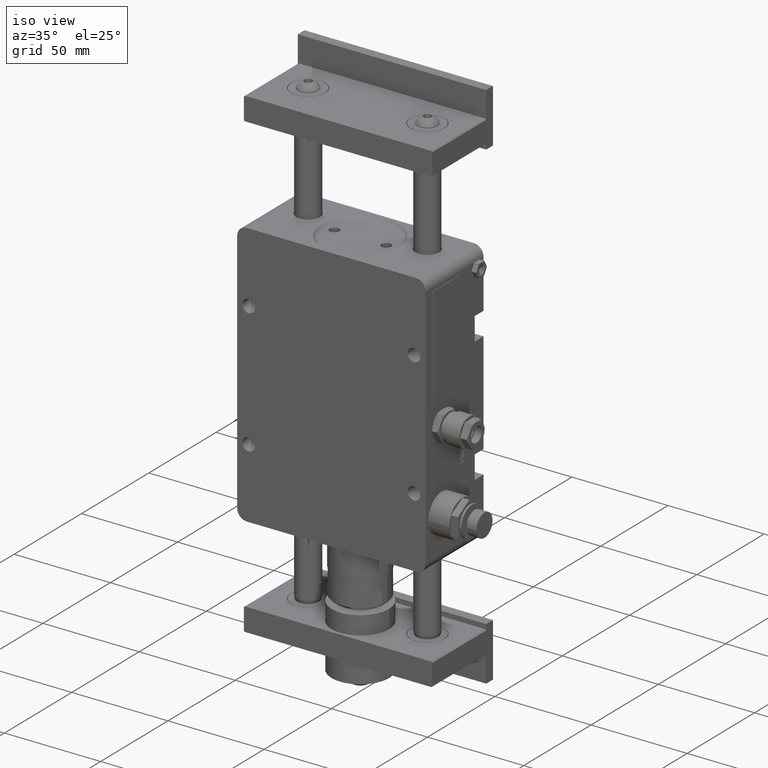
[diagram: clean part render]
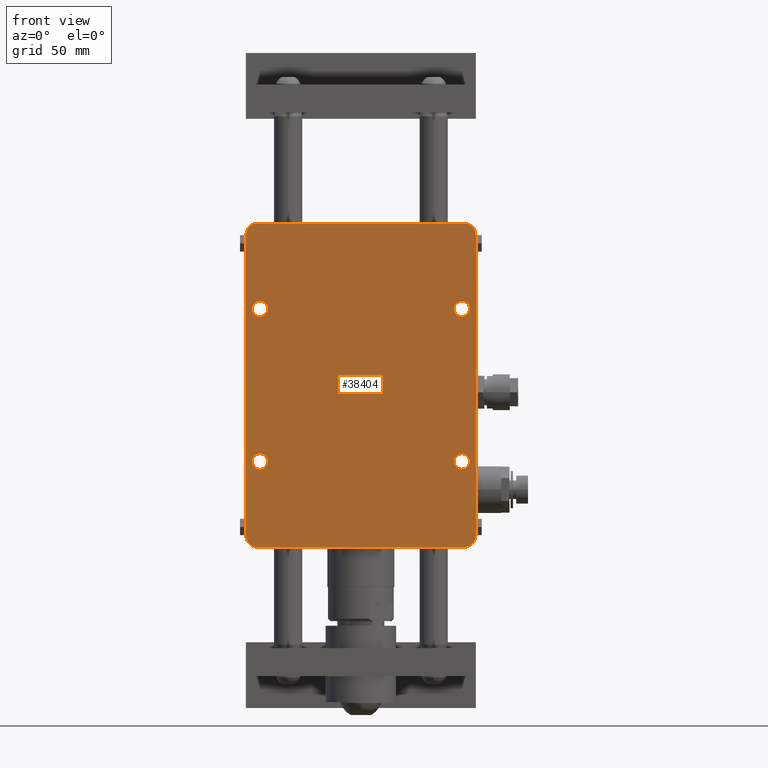
[diagram: tour spotlight — one face highlighted and labeled with its STEP entity id]
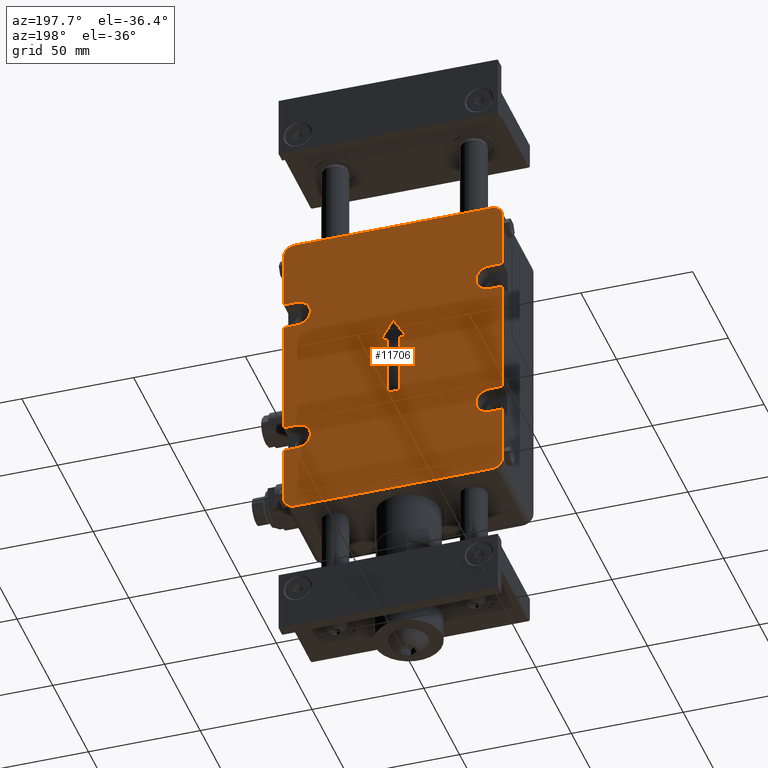
[diagram: tour spotlight — one face highlighted and labeled with its STEP entity id]
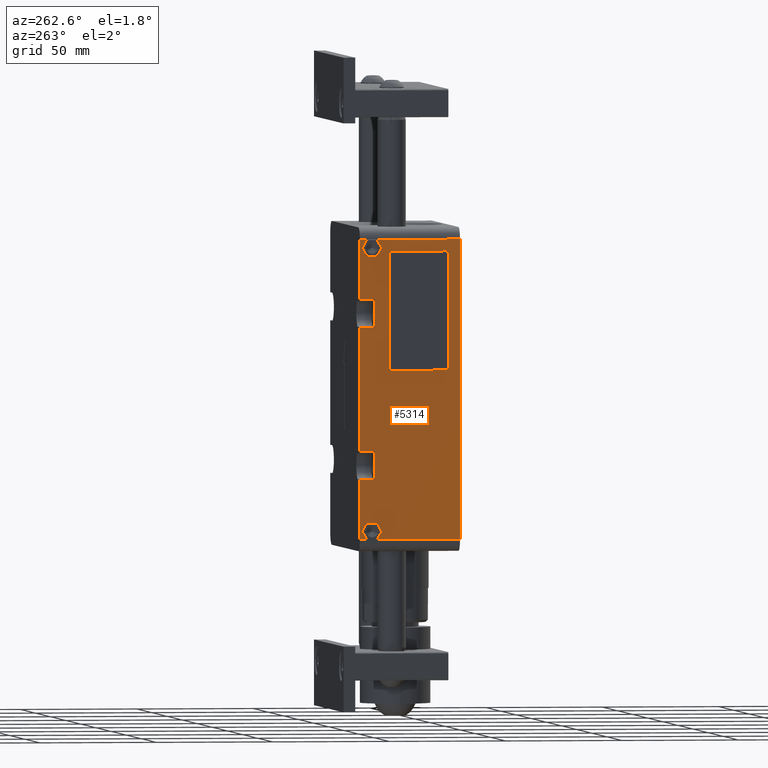
[diagram: tour spotlight — one face highlighted and labeled with its STEP entity id]
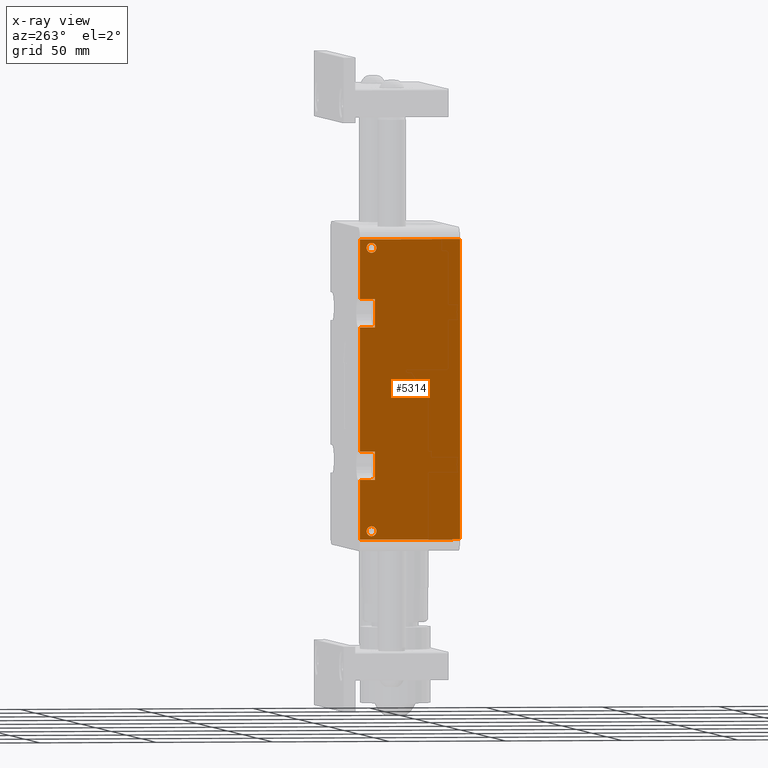
[diagram: x-ray of the same camera — body ghosted, this tour face saturated]
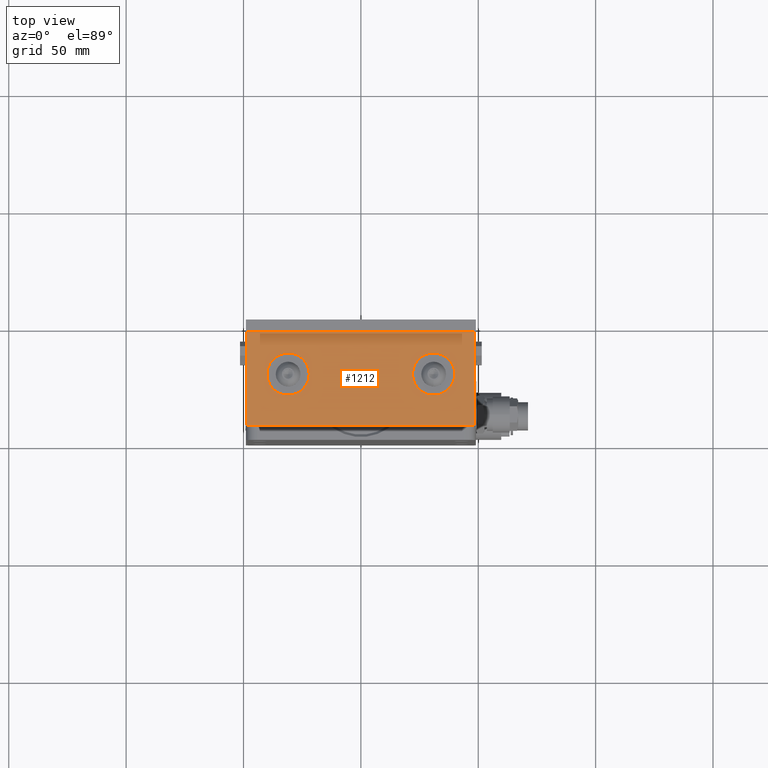
[diagram: tour spotlight — one face highlighted and labeled with its STEP entity id]
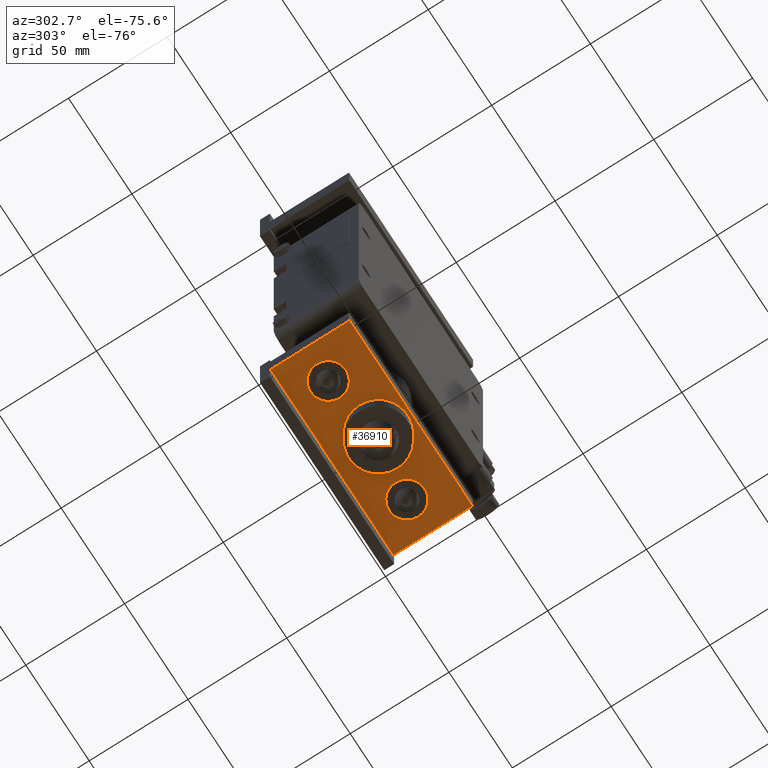
[diagram: tour spotlight — one face highlighted and labeled with its STEP entity id]
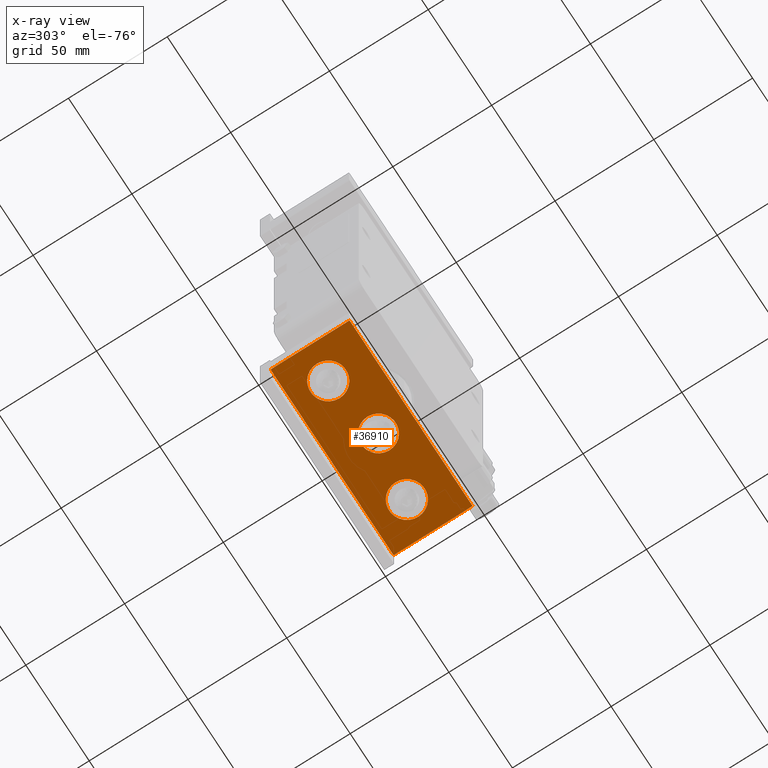
[diagram: x-ray of the same camera — body ghosted, this tour face saturated]
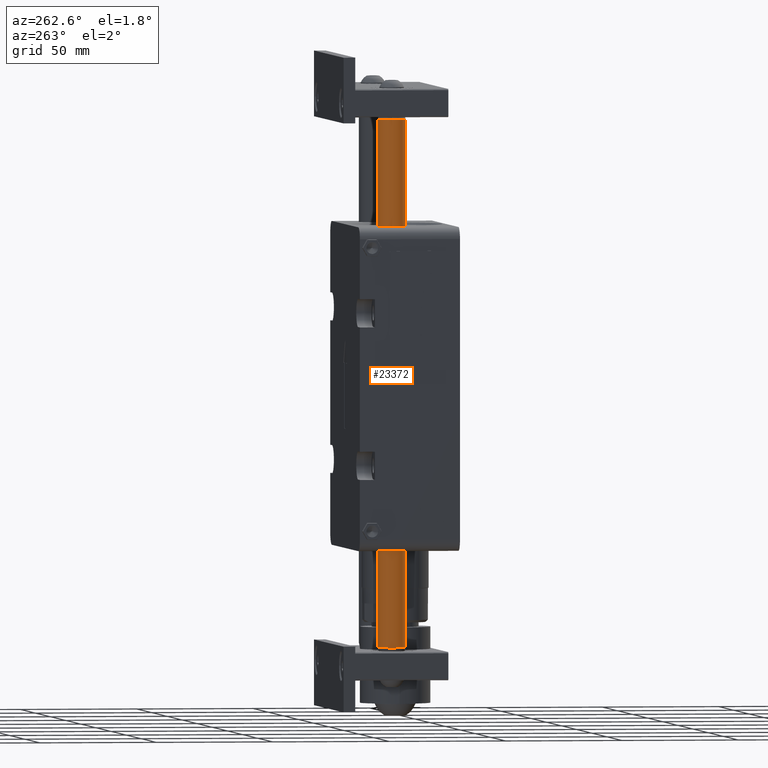
[diagram: tour spotlight — one face highlighted and labeled with its STEP entity id]
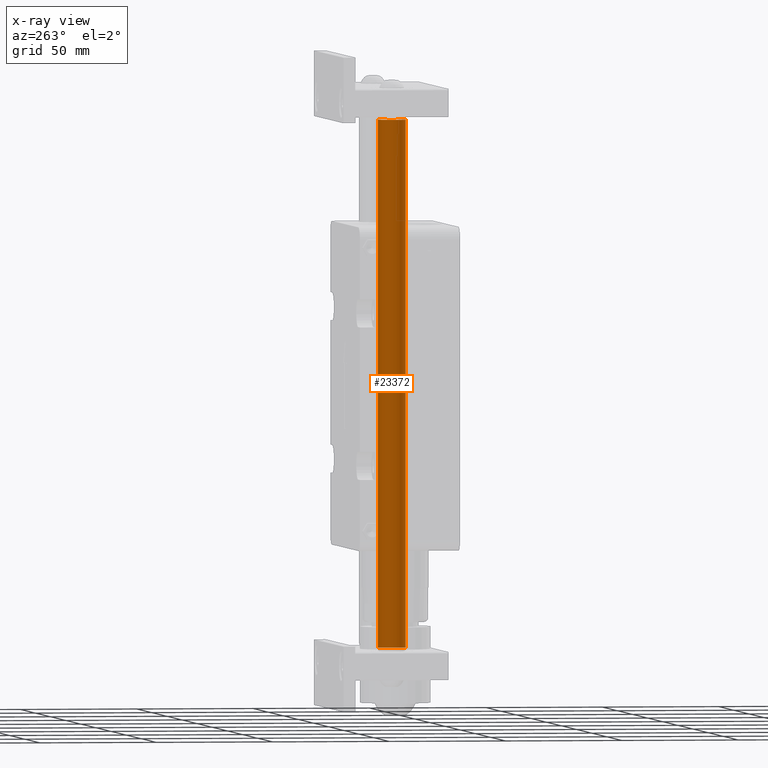
[diagram: x-ray of the same camera — body ghosted, this tour face saturated]
A machine part: a face-by-face anatomy tour. The part has 1256 B-rep faces; the first image is the clean iso view, then the 6 largest visible faces are spotlighted one at a time (largest first), each with its STEP entity span.

Face 1 — front view, entity #38404. In plain terms, the highlighted planar face has unit normal (-0, 1, 0).
Definition (entity closure, byte-faithful):
#133 = VECTOR ( 'NONE', #19414, 1000.000000000000000 ) ;
#762 = CARTESIAN_POINT ( 'NONE',  ( -44.00000000000000000, 0.000000000000000000, 138.0000000000000000 ) ) ;
#1084 = VERTEX_POINT ( 'NONE', #762 ) ;
#1356 = DIRECTION ( 'NONE',  ( 0.000000000000000000, 1.000000000000000000, 0.000000000000000000 ) ) ;
#1359 = EDGE_LOOP ( 'NONE', ( #4728, #36453 ) ) ;
#1416 = LINE ( 'NONE', #18431, #40552 ) ;
#2157 = DIRECTION ( 'NONE',  ( 0.000000000000000000, 1.000000000000000000, 0.000000000000000000 ) ) ;
#2191 = EDGE_CURVE ( 'NONE', #3311, #30127, #26979, .T. ) ;
#2429 = CARTESIAN_POINT ( 'NONE',  ( 49.00000000000000000, 0.000000000000000000, 5.000000000000000000 ) ) ;
#2468 = DIRECTION ( 'NONE',  ( 0.000000000000000000, 0.000000000000000000, 1.000000000000000000 ) ) ;
#2719 = EDGE_CURVE ( 'NONE', #5594, #30728, #41946, .T. ) ;
#2852 = DIRECTION ( 'NONE',  ( 0.000000000000000000, 1.000000000000000000, 0.000000000000000000 ) ) ;
#3137 = VERTEX_POINT ( 'NONE', #43935 ) ;
#3192 = DIRECTION ( 'NONE',  ( 0.000000000000000000, 1.000000000000000000, 0.000000000000000000 ) ) ;
#3311 = VERTEX_POINT ( 'NONE', #37285 ) ;
#3351 = CIRCLE ( 'NONE', #17369, 3.299999999999997158 ) ;
#3866 = EDGE_CURVE ( 'NONE', #11424, #44630, #9609, .T. ) ;
#4399 = DIRECTION ( 'NONE',  ( 0.000000000000000000, -1.000000000000000000, 0.000000000000000000 ) ) ;
#4640 = DIRECTION ( 'NONE',  ( 0.000000000000000000, 0.000000000000000000, 1.000000000000000000 ) ) ;
#4728 = ORIENTED_EDGE ( 'NONE', *, *, #37175, .T. ) ;
#5594 = VERTEX_POINT ( 'NONE', #16976 ) ;
#5796 = VERTEX_POINT ( 'NONE', #51839 ) ;
#5986 = CIRCLE ( 'NONE', #32274, 3.299999999999997158 ) ;
#6683 = CARTESIAN_POINT ( 'NONE',  ( 43.00000000000000000, 0.000000000000000000, 36.50000000000000000 ) ) ;
#6782 = CARTESIAN_POINT ( 'NONE',  ( -49.00000000000000000, 0.000000000000000000, 138.0000000000000000 ) ) ;
#6854 = EDGE_LOOP ( 'NONE', ( #49908, #53763, #33876, #35226, #6962, #43979, #8283, #28534 ) ) ;
#6962 = ORIENTED_EDGE ( 'NONE', *, *, #15498, .F. ) ;
#7446 = DIRECTION ( 'NONE',  ( 0.000000000000000000, 0.000000000000000000, -1.000000000000000000 ) ) ;
#7501 = CARTESIAN_POINT ( 'NONE',  ( -43.00000000000000000, 0.000000000000000000, 36.50000000000000000 ) ) ;
#7594 = EDGE_CURVE ( 'NONE', #1084, #3137, #21638, .T. ) ;
#7612 = CARTESIAN_POINT ( 'NONE',  ( -49.00000000000000000, 0.000000000000000000, 0.000000000000000000 ) ) ;
#7760 = CIRCLE ( 'NONE', #38456, 3.299999999999997158 ) ;
#8230 = DIRECTION ( 'NONE',  ( 0.000000000000000000, 0.000000000000000000, 1.000000000000000000 ) ) ;
#8283 = ORIENTED_EDGE ( 'NONE', *, *, #38122, .T. ) ;
#8694 = EDGE_CURVE ( 'NONE', #50940, #26798, #5986, .T. ) ;
#8985 = ORIENTED_EDGE ( 'NONE', *, *, #2719, .T. ) ;
#9578 = EDGE_LOOP ( 'NONE', ( #50792, #36724 ) ) ;
#9609 = CIRCLE ( 'NONE', #49050, 3.299999999999997158 ) ;
#9963 = EDGE_CURVE ( 'NONE', #5796, #26612, #42208, .T. ) ;
#10544 = DIRECTION ( 'NONE',  ( 0.000000000000000000, 0.000000000000000000, 1.000000000000000000 ) ) ;
#11424 = VERTEX_POINT ( 'NONE', #14645 ) ;
#12577 = DIRECTION ( 'NONE',  ( 0.000000000000000000, -1.000000000000000000, 0.000000000000000000 ) ) ;
#12823 = ORIENTED_EDGE ( 'NONE', *, *, #28972, .T. ) ;
#13267 = CARTESIAN_POINT ( 'NONE',  ( -43.00000000000000000, 0.000000000000000000, 98.19999999999998863 ) ) ;
#13348 = AXIS2_PLACEMENT_3D ( 'NONE', #27109, #2157, #35103 ) ;
#13442 = VERTEX_POINT ( 'NONE', #35005 ) ;
#13693 = AXIS2_PLACEMENT_3D ( 'NONE', #29591, #12577, #17522 ) ;
#14237 = VERTEX_POINT ( 'NONE', #38536 ) ;
#14545 = PLANE ( 'NONE',  #50094 ) ;
#14645 = CARTESIAN_POINT ( 'NONE',  ( -43.00000000000000000, 0.000000000000000000, 104.8000000000000114 ) ) ;
#14948 = EDGE_CURVE ( 'NONE', #26798, #50940, #42291, .T. ) ;
#15498 = EDGE_CURVE ( 'NONE', #1084, #30127, #1416, .T. ) ;
#15597 = CARTESIAN_POINT ( 'NONE',  ( -43.00000000000000000, 0.000000000000000000, 36.50000000000000000 ) ) ;
#16976 = CARTESIAN_POINT ( 'NONE',  ( -43.00000000000000000, 0.000000000000000000, 39.80000000000000426 ) ) ;
#17333 = CARTESIAN_POINT ( 'NONE',  ( 43.00000000000000000, 0.000000000000000000, 98.19999999999998863 ) ) ;
#17369 = AXIS2_PLACEMENT_3D ( 'NONE', #48518, #3192, #28398 ) ;
#17522 = DIRECTION ( 'NONE',  ( 0.000000000000000000, 0.000000000000000000, 1.000000000000000000 ) ) ;
#17552 = CARTESIAN_POINT ( 'NONE',  ( -43.00000000000000000, 0.000000000000000000, 101.5000000000000000 ) ) ;
#18431 = CARTESIAN_POINT ( 'NONE',  ( -49.00000000000000000, 0.000000000000000000, 138.0000000000000000 ) ) ;
#19414 = DIRECTION ( 'NONE',  ( 0.000000000000000000, 0.000000000000000000, -1.000000000000000000 ) ) ;
#20013 = EDGE_CURVE ( 'NONE', #30555, #5796, #41763, .T. ) ;
#20767 = CARTESIAN_POINT ( 'NONE',  ( 43.00000000000000000, 0.000000000000000000, 36.50000000000000000 ) ) ;
#21582 = EDGE_LOOP ( 'NONE', ( #46034, #12823 ) ) ;
#21638 = CIRCLE ( 'NONE', #38290, 5.000000000000004441 ) ;
#21854 = DIRECTION ( 'NONE',  ( 0.000000000000000000, 0.000000000000000000, 1.000000000000000000 ) ) ;
#21998 = DIRECTION ( 'NONE',  ( 1.000000000000000000, 0.000000000000000000, 0.000000000000000000 ) ) ;
#23262 = LINE ( 'NONE', #6782, #133 ) ;
#23675 = CIRCLE ( 'NONE', #28919, 3.299999999999997158 ) ;
#24130 = CARTESIAN_POINT ( 'NONE',  ( -44.00000000000000000, 0.000000000000000000, 133.0000000000000000 ) ) ;
#24563 = VERTEX_POINT ( 'NONE', #2429 ) ;
#25498 = DIRECTION ( 'NONE',  ( 0.000000000000000000, 1.000000000000000000, 0.000000000000000000 ) ) ;
#25589 = ORIENTED_EDGE ( 'NONE', *, *, #28113, .T. ) ;
#26612 = VERTEX_POINT ( 'NONE', #34980 ) ;
#26798 = VERTEX_POINT ( 'NONE', #33295 ) ;
#26979 = CIRCLE ( 'NONE', #27842, 5.000000000000004441 ) ;
#27109 = CARTESIAN_POINT ( 'NONE',  ( 43.00000000000000000, 0.000000000000000000, 101.5000000000000000 ) ) ;
#27435 = FACE_BOUND ( 'NONE', #21582, .T. ) ;
#27842 = AXIS2_PLACEMENT_3D ( 'NONE', #28808, #4399, #8230 ) ;
#27966 = VECTOR ( 'NONE', #7446, 1000.000000000000000 ) ;
#28113 = EDGE_CURVE ( 'NONE', #30728, #5594, #7760, .T. ) ;
#28206 = DIRECTION ( 'NONE',  ( 0.000000000000000000, 1.000000000000000000, 0.000000000000000000 ) ) ;
#28274 = CIRCLE ( 'NONE', #44982, 5.000000000000000000 ) ;
#28398 = DIRECTION ( 'NONE',  ( 0.000000000000000000, 0.000000000000000000, 1.000000000000000000 ) ) ;
#28534 = ORIENTED_EDGE ( 'NONE', *, *, #20013, .T. ) ;
#28690 = EDGE_CURVE ( 'NONE', #14237, #13442, #44514, .T. ) ;
#28808 = CARTESIAN_POINT ( 'NONE',  ( 44.00000000000000000, 0.000000000000000000, 133.0000000000000000 ) ) ;
#28919 = AXIS2_PLACEMENT_3D ( 'NONE', #20767, #45224, #32288 ) ;
#28972 = EDGE_CURVE ( 'NONE', #44630, #11424, #3351, .T. ) ;
#29327 = CARTESIAN_POINT ( 'NONE',  ( 44.00000000000000000, 0.000000000000000000, 5.000000000000000000 ) ) ;
#29591 = CARTESIAN_POINT ( 'NONE',  ( -44.00000000000000000, 0.000000000000000000, 5.000000000000000000 ) ) ;
#30127 = VERTEX_POINT ( 'NONE', #49873 ) ;
#30555 = VERTEX_POINT ( 'NONE', #38780 ) ;
#30631 = EDGE_CURVE ( 'NONE', #3311, #24563, #48927, .T. ) ;
#30728 = VERTEX_POINT ( 'NONE', #46169 ) ;
#31292 = FACE_BOUND ( 'NONE', #1359, .T. ) ;
#32085 = DIRECTION ( 'NONE',  ( 1.000000000000000000, 0.000000000000000000, 0.000000000000000000 ) ) ;
#32274 = AXIS2_PLACEMENT_3D ( 'NONE', #38131, #25498, #51592 ) ;
#32288 = DIRECTION ( 'NONE',  ( 0.000000000000000000, 0.000000000000000000, 1.000000000000000000 ) ) ;
#32356 = CARTESIAN_POINT ( 'NONE',  ( -49.00000000000000000, 0.000000000000000000, 138.0000000000000000 ) ) ;
#33290 = DIRECTION ( 'NONE',  ( 0.000000000000000000, 0.000000000000000000, 1.000000000000000000 ) ) ;
#33295 = CARTESIAN_POINT ( 'NONE',  ( 43.00000000000000000, 0.000000000000000000, 104.8000000000000114 ) ) ;
#33876 = ORIENTED_EDGE ( 'NONE', *, *, #30631, .F. ) ;
#34980 = CARTESIAN_POINT ( 'NONE',  ( 44.00000000000000000, 0.000000000000000000, 0.000000000000000000 ) ) ;
#35005 = CARTESIAN_POINT ( 'NONE',  ( 43.00000000000000000, 0.000000000000000000, 39.80000000000000426 ) ) ;
#35103 = DIRECTION ( 'NONE',  ( 0.000000000000000000, 0.000000000000000000, 1.000000000000000000 ) ) ;
#35226 = ORIENTED_EDGE ( 'NONE', *, *, #2191, .T. ) ;
#35960 = FACE_BOUND ( 'NONE', #48374, .T. ) ;
#36220 = DIRECTION ( 'NONE',  ( -0.000000000000000000, 1.000000000000000000, 0.000000000000000000 ) ) ;
#36453 = ORIENTED_EDGE ( 'NONE', *, *, #28690, .T. ) ;
#36481 = FACE_BOUND ( 'NONE', #9578, .T. ) ;
#36724 = ORIENTED_EDGE ( 'NONE', *, *, #8694, .T. ) ;
#36877 = DIRECTION ( 'NONE',  ( 0.000000000000000000, 0.000000000000000000, 1.000000000000000000 ) ) ;
#36988 = DIRECTION ( 'NONE',  ( 1.000000000000000000, 0.000000000000000000, 0.000000000000000000 ) ) ;
#37175 = EDGE_CURVE ( 'NONE', #13442, #14237, #23675, .T. ) ;
#37285 = CARTESIAN_POINT ( 'NONE',  ( 49.00000000000000000, 0.000000000000000000, 133.0000000000000000 ) ) ;
#38122 = EDGE_CURVE ( 'NONE', #3137, #30555, #23262, .T. ) ;
#38131 = CARTESIAN_POINT ( 'NONE',  ( 43.00000000000000000, 0.000000000000000000, 101.5000000000000000 ) ) ;
#38290 = AXIS2_PLACEMENT_3D ( 'NONE', #24130, #50984, #21854 ) ;
#38404 = ADVANCED_FACE ( 'NONE', ( #36481, #31292, #27435, #35960, #44223 ), #14545, .F. ) ;
#38456 = AXIS2_PLACEMENT_3D ( 'NONE', #15597, #28206, #2468 ) ;
#38536 = CARTESIAN_POINT ( 'NONE',  ( 43.00000000000000000, 0.000000000000000000, 33.20000000000000284 ) ) ;
#38780 = CARTESIAN_POINT ( 'NONE',  ( -49.00000000000000000, 0.000000000000000000, 5.000000000000000000 ) ) ;
#39873 = CARTESIAN_POINT ( 'NONE',  ( 49.00000000000000000, 0.000000000000000000, 138.0000000000000000 ) ) ;
#40250 = VECTOR ( 'NONE', #36988, 1000.000000000000000 ) ;
#40300 = EDGE_CURVE ( 'NONE', #26612, #24563, #28274, .T. ) ;
#40552 = VECTOR ( 'NONE', #21998, 1000.000000000000000 ) ;
#41168 = DIRECTION ( 'NONE',  ( 0.000000000000000000, -1.000000000000000000, 0.000000000000000000 ) ) ;
#41557 = DIRECTION ( 'NONE',  ( 0.000000000000000000, 1.000000000000000000, 0.000000000000000000 ) ) ;
#41763 = CIRCLE ( 'NONE', #13693, 5.000000000000000000 ) ;
#41946 = CIRCLE ( 'NONE', #54279, 3.299999999999997158 ) ;
#42208 = LINE ( 'NONE', #7612, #40250 ) ;
#42291 = CIRCLE ( 'NONE', #13348, 3.299999999999997158 ) ;
#43935 = CARTESIAN_POINT ( 'NONE',  ( -49.00000000000000000, 0.000000000000000000, 133.0000000000000000 ) ) ;
#43979 = ORIENTED_EDGE ( 'NONE', *, *, #7594, .T. ) ;
#44223 = FACE_OUTER_BOUND ( 'NONE', #6854, .T. ) ;
#44514 = CIRCLE ( 'NONE', #52394, 3.299999999999997158 ) ;
#44630 = VERTEX_POINT ( 'NONE', #13267 ) ;
#44982 = AXIS2_PLACEMENT_3D ( 'NONE', #29327, #41168, #4640 ) ;
#45224 = DIRECTION ( 'NONE',  ( 0.000000000000000000, 1.000000000000000000, 0.000000000000000000 ) ) ;
#46034 = ORIENTED_EDGE ( 'NONE', *, *, #3866, .T. ) ;
#46169 = CARTESIAN_POINT ( 'NONE',  ( -43.00000000000000000, 0.000000000000000000, 33.20000000000000284 ) ) ;
#48374 = EDGE_LOOP ( 'NONE', ( #8985, #25589 ) ) ;
#48518 = CARTESIAN_POINT ( 'NONE',  ( -43.00000000000000000, 0.000000000000000000, 101.5000000000000000 ) ) ;
#48927 = LINE ( 'NONE', #39873, #27966 ) ;
#49050 = AXIS2_PLACEMENT_3D ( 'NONE', #17552, #1356, #33290 ) ;
#49873 = CARTESIAN_POINT ( 'NONE',  ( 44.00000000000000000, 0.000000000000000000, 138.0000000000000000 ) ) ;
#49908 = ORIENTED_EDGE ( 'NONE', *, *, #9963, .T. ) ;
#50094 = AXIS2_PLACEMENT_3D ( 'NONE', #32356, #36220, #32085 ) ;
#50792 = ORIENTED_EDGE ( 'NONE', *, *, #14948, .T. ) ;
#50940 = VERTEX_POINT ( 'NONE', #17333 ) ;
#50984 = DIRECTION ( 'NONE',  ( 0.000000000000000000, -1.000000000000000000, 0.000000000000000000 ) ) ;
#51592 = DIRECTION ( 'NONE',  ( 0.000000000000000000, 0.000000000000000000, 1.000000000000000000 ) ) ;
#51839 = CARTESIAN_POINT ( 'NONE',  ( -44.00000000000000000, 0.000000000000000000, 0.000000000000000000 ) ) ;
#52394 = AXIS2_PLACEMENT_3D ( 'NONE', #6683, #2852, #10544 ) ;
#53763 = ORIENTED_EDGE ( 'NONE', *, *, #40300, .T. ) ;
#54279 = AXIS2_PLACEMENT_3D ( 'NONE', #7501, #41557, #36877 ) ;

Face 2 — auxiliary view, entity #11706. In plain terms, the highlighted planar face has unit normal (0, -1, 0).
Definition (entity closure, byte-faithful):
#89 = CARTESIAN_POINT ( 'NONE',  ( -49.00000000000000000, 43.00000000000000000, 138.0000000000000000 ) ) ;
#1075 = CIRCLE ( 'NONE', #42260, 5.999999999999998224 ) ;
#1169 = ORIENTED_EDGE ( 'NONE', *, *, #15972, .F. ) ;
#1618 = CIRCLE ( 'NONE', #40176, 5.999999999999998224 ) ;
#1704 = EDGE_CURVE ( 'NONE', #16681, #21133, #20396, .T. ) ;
#1711 = VECTOR ( 'NONE', #34568, 1000.000000000000000 ) ;
#1822 = VERTEX_POINT ( 'NONE', #47038 ) ;
#2199 = ORIENTED_EDGE ( 'NONE', *, *, #29501, .F. ) ;
#2264 = CARTESIAN_POINT ( 'NONE',  ( 43.00000000000000000, 43.00000000000000000, 107.5000000000000000 ) ) ;
#3068 = LINE ( 'NONE', #2264, #24711 ) ;
#3375 = VECTOR ( 'NONE', #28383, 1000.000000000000000 ) ;
#3787 = ORIENTED_EDGE ( 'NONE', *, *, #53578, .T. ) ;
#3809 = EDGE_CURVE ( 'NONE', #10205, #16139, #26579, .T. ) ;
#3886 = EDGE_CURVE ( 'NONE', #16094, #50268, #43360, .T. ) ;
#3947 = DIRECTION ( 'NONE',  ( 0.000000000000000000, 1.000000000000000000, 0.000000000000000000 ) ) ;
#4094 = LINE ( 'NONE', #25490, #41820 ) ;
#4442 = DIRECTION ( 'NONE',  ( 0.000000000000000000, 0.000000000000000000, -1.000000000000000000 ) ) ;
#5087 = DIRECTION ( 'NONE',  ( 0.5001216874249840849, 0.000000000000000000, 0.8659551361168698058 ) ) ;
#5089 = CARTESIAN_POINT ( 'NONE',  ( -49.00000000000000000, 43.00000000000000000, 107.5000000000000000 ) ) ;
#5231 = ORIENTED_EDGE ( 'NONE', *, *, #36427, .T. ) ;
#5359 = CARTESIAN_POINT ( 'NONE',  ( -5.599420683698669521, 43.00000000000000000, 78.89717441019750765 ) ) ;
#5465 = CARTESIAN_POINT ( 'NONE',  ( 49.00000000000000000, 43.00000000000000000, 138.0000000000000000 ) ) ;
#5799 = FACE_OUTER_BOUND ( 'NONE', #43255, .T. ) ;
#5927 = CARTESIAN_POINT ( 'NONE',  ( -43.00000000000000000, 43.00000000000000000, 101.5000000000000000 ) ) ;
#6263 = CARTESIAN_POINT ( 'NONE',  ( 2.800579301305559987, 43.00000000000000000, 78.89767633623729637 ) ) ;
#6682 = DIRECTION ( 'NONE',  ( 0.000000000000000000, 1.000000000000000000, 0.000000000000000000 ) ) ;
#6947 = ORIENTED_EDGE ( 'NONE', *, *, #22055, .T. ) ;
#6950 = CIRCLE ( 'NONE', #35025, 5.000000000000004441 ) ;
#7352 = FACE_BOUND ( 'NONE', #13228, .T. ) ;
#7381 = CARTESIAN_POINT ( 'NONE',  ( -43.00000000000000000, 43.00000000000000000, 107.5000000000000000 ) ) ;
#7386 = CARTESIAN_POINT ( 'NONE',  ( 49.00000000000000000, 43.00000000000000000, 138.0000000000000000 ) ) ;
#7578 = CARTESIAN_POINT ( 'NONE',  ( 43.00000000000000000, 43.00000000000000000, 42.50000000000000000 ) ) ;
#7596 = LINE ( 'NONE', #20782, #27367 ) ;
#7915 = ORIENTED_EDGE ( 'NONE', *, *, #22117, .T. ) ;
#8371 = DIRECTION ( 'NONE',  ( 0.000000000000000000, 0.000000000000000000, 1.000000000000000000 ) ) ;
#8672 = CARTESIAN_POINT ( 'NONE',  ( -44.00000000000000000, 43.00000000000000000, 138.0000000000000000 ) ) ;
#8716 = EDGE_CURVE ( 'NONE', #13505, #36940, #34023, .T. ) ;
#9000 = VECTOR ( 'NONE', #22543, 1000.000000000000000 ) ;
#9428 = VERTEX_POINT ( 'NONE', #39296 ) ;
#9680 = ORIENTED_EDGE ( 'NONE', *, *, #11047, .F. ) ;
#9812 = CARTESIAN_POINT ( 'NONE',  ( -49.00000000000000000, 43.00000000000000000, 133.0000000000000000 ) ) ;
#10004 = CARTESIAN_POINT ( 'NONE',  ( 43.00000000000000000, 43.00000000000000000, 95.50000000000000000 ) ) ;
#10122 = VECTOR ( 'NONE', #24113, 1000.000000000000000 ) ;
#10186 = DIRECTION ( 'NONE',  ( 0.000000000000000000, -1.000000000000000000, 0.000000000000000000 ) ) ;
#10205 = VERTEX_POINT ( 'NONE', #27595 ) ;
#10597 = CARTESIAN_POINT ( 'NONE',  ( -2.799420688697194848, 43.00000000000000000, 78.89734171887739933 ) ) ;
#11047 = EDGE_CURVE ( 'NONE', #48024, #53448, #44112, .T. ) ;
#11240 = AXIS2_PLACEMENT_3D ( 'NONE', #12162, #46223, #16559 ) ;
#11706 = ADVANCED_FACE ( 'NONE', ( #7352, #5799 ), #45257, .F. ) ;
#11739 = EDGE_CURVE ( 'NONE', #9428, #45244, #28731, .T. ) ;
#12162 = CARTESIAN_POINT ( 'NONE',  ( 43.00000000000000000, 43.00000000000000000, 101.5000000000000000 ) ) ;
#12497 = DIRECTION ( 'NONE',  ( 0.000000000000000000, 1.000000000000000000, 0.000000000000000000 ) ) ;
#12528 = ORIENTED_EDGE ( 'NONE', *, *, #15397, .F. ) ;
#12758 = CARTESIAN_POINT ( 'NONE',  ( -43.00000000000000000, 43.00000000000000000, 36.50000000000000000 ) ) ;
#12943 = EDGE_CURVE ( 'NONE', #1822, #24485, #3068, .T. ) ;
#13147 = CARTESIAN_POINT ( 'NONE',  ( -43.00000000000000000, 43.00000000000000000, 42.50000000000000000 ) ) ;
#13228 = EDGE_LOOP ( 'NONE', ( #23302, #13989, #16206, #36914, #36846, #46265, #9680 ) ) ;
#13474 = VERTEX_POINT ( 'NONE', #10004 ) ;
#13485 = LINE ( 'NONE', #34628, #9000 ) ;
#13505 = VERTEX_POINT ( 'NONE', #32210 ) ;
#13679 = EDGE_CURVE ( 'NONE', #9428, #35138, #49347, .T. ) ;
#13989 = ORIENTED_EDGE ( 'NONE', *, *, #21515, .F. ) ;
#14245 = ORIENTED_EDGE ( 'NONE', *, *, #11739, .F. ) ;
#14628 = VECTOR ( 'NONE', #31978, 1000.000000000000000 ) ;
#14808 = CARTESIAN_POINT ( 'NONE',  ( -49.00000000000000000, 43.00000000000000000, 30.50000000000000000 ) ) ;
#15024 = EDGE_CURVE ( 'NONE', #35976, #48024, #7596, .T. ) ;
#15397 = EDGE_CURVE ( 'NONE', #21133, #13505, #33555, .T. ) ;
#15431 = EDGE_CURVE ( 'NONE', #41213, #48146, #13485, .T. ) ;
#15883 = DIRECTION ( 'NONE',  ( 0.000000000000000000, 0.000000000000000000, -1.000000000000000000 ) ) ;
#15972 = EDGE_CURVE ( 'NONE', #34845, #13474, #35916, .T. ) ;
#16094 = VERTEX_POINT ( 'NONE', #6263 ) ;
#16139 = VERTEX_POINT ( 'NONE', #41658 ) ;
#16206 = ORIENTED_EDGE ( 'NONE', *, *, #3886, .F. ) ;
#16254 = CARTESIAN_POINT ( 'NONE',  ( 2.800579301305559987, 43.00000000000000000, 78.89767633623729637 ) ) ;
#16267 = CARTESIAN_POINT ( 'NONE',  ( -43.00000000000000000, 43.00000000000000000, 95.50000000000000000 ) ) ;
#16559 = DIRECTION ( 'NONE',  ( 0.000000000000000000, 0.000000000000000000, 1.000000000000000000 ) ) ;
#16681 = VERTEX_POINT ( 'NONE', #46011 ) ;
#16815 = ORIENTED_EDGE ( 'NONE', *, *, #39251, .T. ) ;
#16953 = ORIENTED_EDGE ( 'NONE', *, *, #8716, .F. ) ;
#17108 = DIRECTION ( 'NONE',  ( 0.000000000000000000, 1.000000000000000000, 0.000000000000000000 ) ) ;
#17454 = ORIENTED_EDGE ( 'NONE', *, *, #48086, .T. ) ;
#17637 = AXIS2_PLACEMENT_3D ( 'NONE', #41129, #10186, #22554 ) ;
#18266 = CARTESIAN_POINT ( 'NONE',  ( 49.00000000000000000, 43.00000000000000000, 42.50000000000000000 ) ) ;
#18628 = DIRECTION ( 'NONE',  ( -1.000000000000000000, 0.000000000000000000, 0.000000000000000000 ) ) ;
#18984 = DIRECTION ( 'NONE',  ( 1.000000000000000000, 0.000000000000000000, 0.000000000000000000 ) ) ;
#19046 = CARTESIAN_POINT ( 'NONE',  ( 43.00000000000000000, 43.00000000000000000, 36.50000000000000000 ) ) ;
#19384 = DIRECTION ( 'NONE',  ( -0.9999999982147835809, 0.000000000000000000, -5.975309996301797456E-05 ) ) ;
#19677 = VECTOR ( 'NONE', #45936, 1000.000000000000000 ) ;
#19707 = CARTESIAN_POINT ( 'NONE',  ( -49.00000000000000000, 43.00000000000000000, 138.0000000000000000 ) ) ;
#19879 = LINE ( 'NONE', #53672, #47002 ) ;
#19881 = EDGE_CURVE ( 'NONE', #47148, #49573, #37022, .T. ) ;
#20396 = LINE ( 'NONE', #16267, #48049 ) ;
#20506 = DIRECTION ( 'NONE',  ( -5.975309996710657549E-05, 0.000000000000000000, 0.9999999982147835809 ) ) ;
#20518 = VERTEX_POINT ( 'NONE', #18266 ) ;
#20723 = CARTESIAN_POINT ( 'NONE',  ( 43.00000000000000000, 43.00000000000000000, 30.50000000000000000 ) ) ;
#20782 = CARTESIAN_POINT ( 'NONE',  ( -2.797747601898114667, 43.00000000000000000, 50.89734176886339867 ) ) ;
#21133 = VERTEX_POINT ( 'NONE', #51303 ) ;
#21515 = EDGE_CURVE ( 'NONE', #50268, #35976, #19879, .T. ) ;
#21591 = DIRECTION ( 'NONE',  ( 0.000000000000000000, 0.000000000000000000, -1.000000000000000000 ) ) ;
#21664 = ORIENTED_EDGE ( 'NONE', *, *, #1704, .F. ) ;
#21729 = CIRCLE ( 'NONE', #35769, 5.000000000000000000 ) ;
#22017 = CARTESIAN_POINT ( 'NONE',  ( -44.00000000000000000, 43.00000000000000000, 5.000000000000000000 ) ) ;
#22055 = EDGE_CURVE ( 'NONE', #30488, #32901, #45111, .T. ) ;
#22113 = VECTOR ( 'NONE', #5087, 1000.000000000000114 ) ;
#22117 = EDGE_CURVE ( 'NONE', #35138, #24485, #24486, .T. ) ;
#22156 = CARTESIAN_POINT ( 'NONE',  ( 49.00000000000000000, 43.00000000000000000, 95.50000000000000000 ) ) ;
#22352 = ORIENTED_EDGE ( 'NONE', *, *, #33953, .F. ) ;
#22543 = DIRECTION ( 'NONE',  ( 0.000000000000000000, 0.000000000000000000, -1.000000000000000000 ) ) ;
#22554 = DIRECTION ( 'NONE',  ( 0.000000000000000000, 0.000000000000000000, -1.000000000000000000 ) ) ;
#23216 = DIRECTION ( 'NONE',  ( -0.9999999982147835809, 0.000000000000000000, -5.975309996797227704E-05 ) ) ;
#23245 = ORIENTED_EDGE ( 'NONE', *, *, #13679, .T. ) ;
#23302 = ORIENTED_EDGE ( 'NONE', *, *, #15024, .F. ) ;
#23485 = DIRECTION ( 'NONE',  ( 0.000000000000000000, 0.000000000000000000, 1.000000000000000000 ) ) ;
#23707 = ORIENTED_EDGE ( 'NONE', *, *, #29194, .F. ) ;
#23757 = CARTESIAN_POINT ( 'NONE',  ( -5.599420683698669521, 43.00000000000000000, 78.89717441019750765 ) ) ;
#24113 = DIRECTION ( 'NONE',  ( 1.000000000000000000, 0.000000000000000000, 0.000000000000000000 ) ) ;
#24485 = VERTEX_POINT ( 'NONE', #28169 ) ;
#24486 = LINE ( 'NONE', #37943, #24818 ) ;
#24711 = VECTOR ( 'NONE', #18984, 1000.000000000000000 ) ;
#24818 = VECTOR ( 'NONE', #36849, 1000.000000000000000 ) ;
#25344 = CARTESIAN_POINT ( 'NONE',  ( 43.00000000000000000, 43.00000000000000000, 42.50000000000000000 ) ) ;
#25490 = CARTESIAN_POINT ( 'NONE',  ( -43.00000000000000000, 43.00000000000000000, 30.50000000000000000 ) ) ;
#26401 = EDGE_CURVE ( 'NONE', #39358, #47148, #28651, .T. ) ;
#26579 = LINE ( 'NONE', #5465, #1711 ) ;
#27367 = VECTOR ( 'NONE', #20506, 999.9999999999998863 ) ;
#27595 = CARTESIAN_POINT ( 'NONE',  ( 49.00000000000000000, 43.00000000000000000, 30.50000000000000000 ) ) ;
#27783 = ORIENTED_EDGE ( 'NONE', *, *, #26401, .F. ) ;
#27880 = CIRCLE ( 'NONE', #11240, 6.000000000000005329 ) ;
#28169 = CARTESIAN_POINT ( 'NONE',  ( 49.00000000000000000, 43.00000000000000000, 107.5000000000000000 ) ) ;
#28314 = ORIENTED_EDGE ( 'NONE', *, *, #33809, .F. ) ;
#28352 = DIRECTION ( 'NONE',  ( 0.000000000000000000, 0.000000000000000000, -1.000000000000000000 ) ) ;
#28383 = DIRECTION ( 'NONE',  ( -1.000000000000000000, 0.000000000000000000, 0.000000000000000000 ) ) ;
#28611 = DIRECTION ( 'NONE',  ( 0.000000000000000000, 0.000000000000000000, -1.000000000000000000 ) ) ;
#28651 = LINE ( 'NONE', #41328, #14628 ) ;
#28731 = LINE ( 'NONE', #19707, #46592 ) ;
#28899 = CARTESIAN_POINT ( 'NONE',  ( 44.00000000000000000, 43.00000000000000000, 0.000000000000000000 ) ) ;
#28938 = EDGE_CURVE ( 'NONE', #38896, #16094, #31742, .T. ) ;
#29194 = EDGE_CURVE ( 'NONE', #36940, #44344, #1618, .T. ) ;
#29333 = DIRECTION ( 'NONE',  ( -1.000000000000000000, 0.000000000000000000, -5.782411586589360597E-16 ) ) ;
#29501 = EDGE_CURVE ( 'NONE', #13474, #1822, #27880, .T. ) ;
#29896 = DIRECTION ( 'NONE',  ( 1.000000000000000000, 0.000000000000000000, 0.000000000000000000 ) ) ;
#29952 = AXIS2_PLACEMENT_3D ( 'NONE', #34273, #42243, #38373 ) ;
#30488 = VERTEX_POINT ( 'NONE', #28899 ) ;
#30903 = EDGE_CURVE ( 'NONE', #49074, #38896, #36479, .T. ) ;
#31742 = LINE ( 'NONE', #40259, #35750 ) ;
#31978 = DIRECTION ( 'NONE',  ( 0.000000000000000000, 0.000000000000000000, -1.000000000000000000 ) ) ;
#32040 = CARTESIAN_POINT ( 'NONE',  ( 43.00000000000000000, 43.00000000000000000, 95.50000000000000000 ) ) ;
#32210 = CARTESIAN_POINT ( 'NONE',  ( -49.00000000000000000, 43.00000000000000000, 42.50000000000000000 ) ) ;
#32227 = ORIENTED_EDGE ( 'NONE', *, *, #19881, .F. ) ;
#32357 = CARTESIAN_POINT ( 'NONE',  ( -2.799420688697194848, 43.00000000000000000, 78.89734171887739933 ) ) ;
#32579 = AXIS2_PLACEMENT_3D ( 'NONE', #5927, #40514, #23485 ) ;
#32831 = LINE ( 'NONE', #7578, #39716 ) ;
#32901 = VERTEX_POINT ( 'NONE', #33168 ) ;
#32999 = DIRECTION ( 'NONE',  ( 5.975309996710657549E-05, 0.000000000000000000, -0.9999999982147835809 ) ) ;
#33168 = CARTESIAN_POINT ( 'NONE',  ( -44.00000000000000000, 43.00000000000000000, 0.000000000000000000 ) ) ;
#33395 = DIRECTION ( 'NONE',  ( 1.000000000000000000, 0.000000000000000000, 0.000000000000000000 ) ) ;
#33555 = LINE ( 'NONE', #89, #35297 ) ;
#33809 = EDGE_CURVE ( 'NONE', #34386, #39619, #1075, .T. ) ;
#33953 = EDGE_CURVE ( 'NONE', #49573, #16681, #44904, .T. ) ;
#34023 = LINE ( 'NONE', #13147, #47214 ) ;
#34273 = CARTESIAN_POINT ( 'NONE',  ( 44.00000000000000000, 43.00000000000000000, 5.000000000000000000 ) ) ;
#34386 = VERTEX_POINT ( 'NONE', #35252 ) ;
#34568 = DIRECTION ( 'NONE',  ( 0.000000000000000000, 0.000000000000000000, -1.000000000000000000 ) ) ;
#34602 = CARTESIAN_POINT ( 'NONE',  ( 5.600579296306940513, 43.00000000000000000, 78.89784364491710278 ) ) ;
#34628 = CARTESIAN_POINT ( 'NONE',  ( -49.00000000000000000, 43.00000000000000000, 138.0000000000000000 ) ) ;
#34845 = VERTEX_POINT ( 'NONE', #22156 ) ;
#35025 = AXIS2_PLACEMENT_3D ( 'NONE', #46237, #3947, #28352 ) ;
#35138 = VERTEX_POINT ( 'NONE', #54259 ) ;
#35252 = CARTESIAN_POINT ( 'NONE',  ( 43.00000000000000000, 43.00000000000000000, 30.50000000000000000 ) ) ;
#35297 = VECTOR ( 'NONE', #4442, 1000.000000000000000 ) ;
#35618 = VECTOR ( 'NONE', #15883, 1000.000000000000000 ) ;
#35750 = VECTOR ( 'NONE', #19384, 999.9999999999998863 ) ;
#35769 = AXIS2_PLACEMENT_3D ( 'NONE', #22017, #38492, #50882 ) ;
#35916 = LINE ( 'NONE', #32040, #36197 ) ;
#35959 = CARTESIAN_POINT ( 'NONE',  ( 2.587833761495669824E-15, 43.00000000000000000, 88.59250901024969949 ) ) ;
#35976 = VERTEX_POINT ( 'NONE', #52451 ) ;
#36197 = VECTOR ( 'NONE', #18628, 1000.000000000000000 ) ;
#36374 = LINE ( 'NONE', #20723, #3375 ) ;
#36427 = EDGE_CURVE ( 'NONE', #39358, #45244, #6950, .T. ) ;
#36479 = LINE ( 'NONE', #35959, #46467 ) ;
#36753 = LINE ( 'NONE', #7386, #35618 ) ;
#36846 = ORIENTED_EDGE ( 'NONE', *, *, #30903, .F. ) ;
#36849 = DIRECTION ( 'NONE',  ( 0.000000000000000000, 0.000000000000000000, -1.000000000000000000 ) ) ;
#36914 = ORIENTED_EDGE ( 'NONE', *, *, #28938, .F. ) ;
#36940 = VERTEX_POINT ( 'NONE', #44718 ) ;
#37022 = LINE ( 'NONE', #7381, #10122 ) ;
#37943 = CARTESIAN_POINT ( 'NONE',  ( 49.00000000000000000, 43.00000000000000000, 138.0000000000000000 ) ) ;
#38373 = DIRECTION ( 'NONE',  ( 0.000000000000000000, 0.000000000000000000, -1.000000000000000000 ) ) ;
#38492 = DIRECTION ( 'NONE',  ( 0.000000000000000000, 1.000000000000000000, 0.000000000000000000 ) ) ;
#38896 = VERTEX_POINT ( 'NONE', #34602 ) ;
#38982 = ORIENTED_EDGE ( 'NONE', *, *, #50183, .F. ) ;
#39251 = EDGE_CURVE ( 'NONE', #16139, #30488, #46648, .T. ) ;
#39296 = CARTESIAN_POINT ( 'NONE',  ( 44.00000000000000000, 43.00000000000000000, 138.0000000000000000 ) ) ;
#39358 = VERTEX_POINT ( 'NONE', #9812 ) ;
#39619 = VERTEX_POINT ( 'NONE', #25344 ) ;
#39716 = VECTOR ( 'NONE', #33395, 1000.000000000000000 ) ;
#40176 = AXIS2_PLACEMENT_3D ( 'NONE', #12758, #12497, #8371 ) ;
#40259 = CARTESIAN_POINT ( 'NONE',  ( 5.600579296306940513, 43.00000000000000000, 78.89784364491710278 ) ) ;
#40514 = DIRECTION ( 'NONE',  ( 0.000000000000000000, 1.000000000000000000, 0.000000000000000000 ) ) ;
#41129 = CARTESIAN_POINT ( 'NONE',  ( -49.00000000000000000, 43.00000000000000000, 138.0000000000000000 ) ) ;
#41213 = VERTEX_POINT ( 'NONE', #14808 ) ;
#41275 = VECTOR ( 'NONE', #23216, 999.9999999999998863 ) ;
#41328 = CARTESIAN_POINT ( 'NONE',  ( -49.00000000000000000, 43.00000000000000000, 138.0000000000000000 ) ) ;
#41658 = CARTESIAN_POINT ( 'NONE',  ( 49.00000000000000000, 43.00000000000000000, 5.000000000000000000 ) ) ;
#41764 = EDGE_CURVE ( 'NONE', #53448, #49074, #42989, .T. ) ;
#41820 = VECTOR ( 'NONE', #29333, 1000.000000000000000 ) ;
#41971 = CARTESIAN_POINT ( 'NONE',  ( -49.00000000000000000, 43.00000000000000000, 5.000000000000000000 ) ) ;
#42243 = DIRECTION ( 'NONE',  ( 0.000000000000000000, 1.000000000000000000, 0.000000000000000000 ) ) ;
#42260 = AXIS2_PLACEMENT_3D ( 'NONE', #19046, #6682, #21591 ) ;
#42637 = EDGE_CURVE ( 'NONE', #39619, #20518, #32831, .T. ) ;
#42989 = LINE ( 'NONE', #5359, #22113 ) ;
#43222 = ORIENTED_EDGE ( 'NONE', *, *, #12943, .F. ) ;
#43255 = EDGE_LOOP ( 'NONE', ( #50777, #16815, #6947, #3787, #53888, #38982, #23707, #16953, #12528, #21664, #22352, #32227, #27783, #5231, #14245, #23245, #7915, #43222, #2199, #1169, #17454, #48830, #28314, #45056 ) ) ;
#43360 = LINE ( 'NONE', #16254, #51729 ) ;
#44112 = LINE ( 'NONE', #10597, #41275 ) ;
#44344 = VERTEX_POINT ( 'NONE', #47681 ) ;
#44718 = CARTESIAN_POINT ( 'NONE',  ( -43.00000000000000000, 43.00000000000000000, 42.50000000000000000 ) ) ;
#44904 = CIRCLE ( 'NONE', #32579, 6.000000000000005329 ) ;
#45056 = ORIENTED_EDGE ( 'NONE', *, *, #52096, .F. ) ;
#45111 = LINE ( 'NONE', #49225, #19677 ) ;
#45244 = VERTEX_POINT ( 'NONE', #8672 ) ;
#45257 = PLANE ( 'NONE',  #17637 ) ;
#45936 = DIRECTION ( 'NONE',  ( -1.000000000000000000, 0.000000000000000000, 0.000000000000000000 ) ) ;
#45989 = CARTESIAN_POINT ( 'NONE',  ( -43.00000000000000000, 43.00000000000000000, 107.5000000000000000 ) ) ;
#46011 = CARTESIAN_POINT ( 'NONE',  ( -43.00000000000000000, 43.00000000000000000, 95.50000000000000000 ) ) ;
#46223 = DIRECTION ( 'NONE',  ( 0.000000000000000000, 1.000000000000000000, 0.000000000000000000 ) ) ;
#46237 = CARTESIAN_POINT ( 'NONE',  ( -44.00000000000000000, 43.00000000000000000, 133.0000000000000000 ) ) ;
#46265 = ORIENTED_EDGE ( 'NONE', *, *, #41764, .F. ) ;
#46467 = VECTOR ( 'NONE', #52734, 1000.000000000000114 ) ;
#46592 = VECTOR ( 'NONE', #53220, 1000.000000000000000 ) ;
#46648 = CIRCLE ( 'NONE', #29952, 5.000000000000000000 ) ;
#47002 = VECTOR ( 'NONE', #48745, 999.9999999999998863 ) ;
#47038 = CARTESIAN_POINT ( 'NONE',  ( 43.00000000000000000, 43.00000000000000000, 107.5000000000000000 ) ) ;
#47148 = VERTEX_POINT ( 'NONE', #5089 ) ;
#47207 = CARTESIAN_POINT ( 'NONE',  ( 2.802252388104639724, 43.00000000000000000, 50.89767638622329571 ) ) ;
#47214 = VECTOR ( 'NONE', #29896, 1000.000000000000000 ) ;
#47681 = CARTESIAN_POINT ( 'NONE',  ( -43.00000000000000000, 43.00000000000000000, 30.50000000000000000 ) ) ;
#48024 = VERTEX_POINT ( 'NONE', #32357 ) ;
#48049 = VECTOR ( 'NONE', #48708, 1000.000000000000000 ) ;
#48086 = EDGE_CURVE ( 'NONE', #34845, #20518, #36753, .T. ) ;
#48146 = VERTEX_POINT ( 'NONE', #41971 ) ;
#48614 = CARTESIAN_POINT ( 'NONE',  ( 2.587833761495669824E-15, 43.00000000000000000, 88.59250901024969949 ) ) ;
#48708 = DIRECTION ( 'NONE',  ( -1.000000000000000000, 0.000000000000000000, 0.000000000000000000 ) ) ;
#48745 = DIRECTION ( 'NONE',  ( -0.9999999982147835809, 0.000000000000000000, -5.975309996797437768E-05 ) ) ;
#48830 = ORIENTED_EDGE ( 'NONE', *, *, #42637, .F. ) ;
#49074 = VERTEX_POINT ( 'NONE', #48614 ) ;
#49225 = CARTESIAN_POINT ( 'NONE',  ( -49.00000000000000000, 43.00000000000000000, 0.000000000000000000 ) ) ;
#49347 = CIRCLE ( 'NONE', #51999, 5.000000000000004441 ) ;
#49573 = VERTEX_POINT ( 'NONE', #45989 ) ;
#50183 = EDGE_CURVE ( 'NONE', #44344, #41213, #4094, .T. ) ;
#50268 = VERTEX_POINT ( 'NONE', #47207 ) ;
#50777 = ORIENTED_EDGE ( 'NONE', *, *, #3809, .T. ) ;
#50882 = DIRECTION ( 'NONE',  ( 0.000000000000000000, 0.000000000000000000, -1.000000000000000000 ) ) ;
#51303 = CARTESIAN_POINT ( 'NONE',  ( -49.00000000000000000, 43.00000000000000000, 95.50000000000000000 ) ) ;
#51729 = VECTOR ( 'NONE', #32999, 999.9999999999998863 ) ;
#51999 = AXIS2_PLACEMENT_3D ( 'NONE', #53921, #17108, #28611 ) ;
#52096 = EDGE_CURVE ( 'NONE', #10205, #34386, #36374, .T. ) ;
#52451 = CARTESIAN_POINT ( 'NONE',  ( -2.797747601898119996, 43.00000000000000000, 50.89734176886339867 ) ) ;
#52734 = DIRECTION ( 'NONE',  ( 0.5002251708611210601, 0.000000000000000000, -0.8658953622909422165 ) ) ;
#53220 = DIRECTION ( 'NONE',  ( -1.000000000000000000, 0.000000000000000000, 0.000000000000000000 ) ) ;
#53448 = VERTEX_POINT ( 'NONE', #23757 ) ;
#53578 = EDGE_CURVE ( 'NONE', #32901, #48146, #21729, .T. ) ;
#53672 = CARTESIAN_POINT ( 'NONE',  ( 2.802252388104639724, 43.00000000000000000, 50.89767638622329571 ) ) ;
#53888 = ORIENTED_EDGE ( 'NONE', *, *, #15431, .F. ) ;
#53921 = CARTESIAN_POINT ( 'NONE',  ( 44.00000000000000000, 43.00000000000000000, 133.0000000000000000 ) ) ;
#54259 = CARTESIAN_POINT ( 'NONE',  ( 49.00000000000000000, 43.00000000000000000, 133.0000000000000000 ) ) ;

Face 3 — auxiliary view, entity #5314. An x-ray twin of the same camera follows (body ghosted, this face saturated) — the face is partly hidden behind the body. In plain terms, the highlighted planar face has unit normal (1, 0, 0).
Definition (entity closure, byte-faithful):
#43 = CARTESIAN_POINT ( 'NONE',  ( -49.00000000000000000, 38.00000000000000000, 129.3999999999999773 ) ) ;
#89 = CARTESIAN_POINT ( 'NONE',  ( -49.00000000000000000, 43.00000000000000000, 138.0000000000000000 ) ) ;
#133 = VECTOR ( 'NONE', #19414, 1000.000000000000000 ) ;
#564 = DIRECTION ( 'NONE',  ( -1.000000000000000000, 0.000000000000000000, 0.000000000000000000 ) ) ;
#1000 = ORIENTED_EDGE ( 'NONE', *, *, #38122, .F. ) ;
#1170 = VERTEX_POINT ( 'NONE', #30919 ) ;
#1533 = LINE ( 'NONE', #9756, #12689 ) ;
#2005 = EDGE_CURVE ( 'NONE', #36694, #16036, #3354, .T. ) ;
#3137 = VERTEX_POINT ( 'NONE', #43935 ) ;
#3354 = CIRCLE ( 'NONE', #53324, 2.099999999999990763 ) ;
#3563 = CARTESIAN_POINT ( 'NONE',  ( -49.00000000000000000, 38.00000000000000000, 6.500000000000000000 ) ) ;
#3808 = EDGE_CURVE ( 'NONE', #1170, #20857, #11315, .T. ) ;
#4104 = EDGE_CURVE ( 'NONE', #16036, #36694, #38533, .T. ) ;
#4442 = DIRECTION ( 'NONE',  ( 0.000000000000000000, 0.000000000000000000, -1.000000000000000000 ) ) ;
#4959 = CARTESIAN_POINT ( 'NONE',  ( -49.00000000000000000, 36.50000000000000000, 30.50000000000000000 ) ) ;
#4986 = EDGE_LOOP ( 'NONE', ( #13491, #47118 ) ) ;
#5089 = CARTESIAN_POINT ( 'NONE',  ( -49.00000000000000000, 43.00000000000000000, 107.5000000000000000 ) ) ;
#5169 = ORIENTED_EDGE ( 'NONE', *, *, #46199, .T. ) ;
#5256 = VECTOR ( 'NONE', #32004, 1000.000000000000000 ) ;
#5314 = ADVANCED_FACE ( 'NONE', ( #37974, #29722, #22031 ), #8855, .F. ) ;
#5886 = EDGE_CURVE ( 'NONE', #40854, #43873, #52657, .T. ) ;
#6299 = EDGE_CURVE ( 'NONE', #20857, #1170, #29782, .T. ) ;
#6782 = CARTESIAN_POINT ( 'NONE',  ( -49.00000000000000000, 0.000000000000000000, 138.0000000000000000 ) ) ;
#6986 = EDGE_CURVE ( 'NONE', #36996, #41213, #38997, .T. ) ;
#7097 = ORIENTED_EDGE ( 'NONE', *, *, #3808, .F. ) ;
#7252 = DIRECTION ( 'NONE',  ( 0.000000000000000000, 1.000000000000000000, 0.000000000000000000 ) ) ;
#7311 = CARTESIAN_POINT ( 'NONE',  ( -49.00000000000000000, 36.50000000000000000, 95.50000000000000000 ) ) ;
#8077 = DIRECTION ( 'NONE',  ( 0.000000000000000000, 1.000000000000000000, 0.000000000000000000 ) ) ;
#8855 = PLANE ( 'NONE',  #51678 ) ;
#9000 = VECTOR ( 'NONE', #22543, 1000.000000000000000 ) ;
#9044 = DIRECTION ( 'NONE',  ( 0.000000000000000000, 0.000000000000000000, 1.000000000000000000 ) ) ;
#9756 = CARTESIAN_POINT ( 'NONE',  ( -49.00000000000000000, 0.000000000000000000, 5.000000000000000000 ) ) ;
#9812 = CARTESIAN_POINT ( 'NONE',  ( -49.00000000000000000, 43.00000000000000000, 133.0000000000000000 ) ) ;
#10192 = DIRECTION ( 'NONE',  ( -1.000000000000000000, 0.000000000000000000, 0.000000000000000000 ) ) ;
#10386 = CARTESIAN_POINT ( 'NONE',  ( -49.00000000000000000, 38.00000000000000000, 127.2999999999999972 ) ) ;
#11027 = CARTESIAN_POINT ( 'NONE',  ( -49.00000000000000000, 38.00000000000000000, 131.5000000000000000 ) ) ;
#11315 = CIRCLE ( 'NONE', #42033, 2.099999999999999645 ) ;
#11357 = AXIS2_PLACEMENT_3D ( 'NONE', #25343, #12714, #33330 ) ;
#12173 = DIRECTION ( 'NONE',  ( 0.000000000000000000, 0.000000000000000000, 1.000000000000000000 ) ) ;
#12255 = EDGE_CURVE ( 'NONE', #43873, #47148, #15796, .T. ) ;
#12689 = VECTOR ( 'NONE', #26491, 1000.000000000000000 ) ;
#12714 = DIRECTION ( 'NONE',  ( -1.000000000000000000, 0.000000000000000000, 0.000000000000000000 ) ) ;
#13485 = LINE ( 'NONE', #34628, #9000 ) ;
#13491 = ORIENTED_EDGE ( 'NONE', *, *, #2005, .F. ) ;
#13505 = VERTEX_POINT ( 'NONE', #32210 ) ;
#13518 = DIRECTION ( 'NONE',  ( 0.000000000000000000, 1.000000000000000000, 0.000000000000000000 ) ) ;
#14235 = ORIENTED_EDGE ( 'NONE', *, *, #12255, .F. ) ;
#14628 = VECTOR ( 'NONE', #31978, 1000.000000000000000 ) ;
#14808 = CARTESIAN_POINT ( 'NONE',  ( -49.00000000000000000, 43.00000000000000000, 30.50000000000000000 ) ) ;
#15276 = DIRECTION ( 'NONE',  ( 0.000000000000000000, 1.000000000000000000, 0.000000000000000000 ) ) ;
#15397 = EDGE_CURVE ( 'NONE', #21133, #13505, #33555, .T. ) ;
#15431 = EDGE_CURVE ( 'NONE', #41213, #48146, #13485, .T. ) ;
#15796 = LINE ( 'NONE', #35858, #25536 ) ;
#16036 = VERTEX_POINT ( 'NONE', #10386 ) ;
#16041 = CARTESIAN_POINT ( 'NONE',  ( -49.00000000000000000, 0.000000000000000000, 133.0000000000000000 ) ) ;
#19414 = DIRECTION ( 'NONE',  ( 0.000000000000000000, 0.000000000000000000, -1.000000000000000000 ) ) ;
#19963 = CARTESIAN_POINT ( 'NONE',  ( -49.00000000000000000, 36.50000000000000000, 30.50000000000000000 ) ) ;
#20857 = VERTEX_POINT ( 'NONE', #3563 ) ;
#21133 = VERTEX_POINT ( 'NONE', #51303 ) ;
#21700 = DIRECTION ( 'NONE',  ( 0.000000000000000000, 1.000000000000000000, 0.000000000000000000 ) ) ;
#22031 = FACE_OUTER_BOUND ( 'NONE', #26323, .T. ) ;
#22288 = CARTESIAN_POINT ( 'NONE',  ( -49.00000000000000000, 38.00000000000000000, 129.3999999999999773 ) ) ;
#22543 = DIRECTION ( 'NONE',  ( 0.000000000000000000, 0.000000000000000000, -1.000000000000000000 ) ) ;
#22734 = VECTOR ( 'NONE', #12173, 1000.000000000000000 ) ;
#22814 = ORIENTED_EDGE ( 'NONE', *, *, #44347, .T. ) ;
#23262 = LINE ( 'NONE', #6782, #133 ) ;
#23701 = VECTOR ( 'NONE', #21700, 1000.000000000000000 ) ;
#24047 = ORIENTED_EDGE ( 'NONE', *, *, #48236, .F. ) ;
#24662 = CARTESIAN_POINT ( 'NONE',  ( -49.00000000000000000, 36.50000000000000000, 107.5000000000000000 ) ) ;
#25073 = ORIENTED_EDGE ( 'NONE', *, *, #6986, .T. ) ;
#25343 = CARTESIAN_POINT ( 'NONE',  ( -49.00000000000000000, 38.00000000000000000, 8.599999999999999645 ) ) ;
#25536 = VECTOR ( 'NONE', #49314, 1000.000000000000000 ) ;
#26323 = EDGE_LOOP ( 'NONE', ( #53514, #22814, #1000, #35931, #31702, #14235, #27282, #5169, #42162, #24047, #27343, #25073 ) ) ;
#26401 = EDGE_CURVE ( 'NONE', #39358, #47148, #28651, .T. ) ;
#26491 = DIRECTION ( 'NONE',  ( 0.000000000000000000, -1.000000000000000000, 0.000000000000000000 ) ) ;
#27282 = ORIENTED_EDGE ( 'NONE', *, *, #5886, .F. ) ;
#27343 = ORIENTED_EDGE ( 'NONE', *, *, #30487, .F. ) ;
#27695 = VECTOR ( 'NONE', #15276, 1000.000000000000000 ) ;
#28651 = LINE ( 'NONE', #41328, #14628 ) ;
#29722 = FACE_BOUND ( 'NONE', #4986, .T. ) ;
#29782 = CIRCLE ( 'NONE', #11357, 2.099999999999999645 ) ;
#30261 = DIRECTION ( 'NONE',  ( 1.000000000000000000, 0.000000000000000000, 0.000000000000000000 ) ) ;
#30487 = EDGE_CURVE ( 'NONE', #36996, #37836, #50898, .T. ) ;
#30555 = VERTEX_POINT ( 'NONE', #38780 ) ;
#30919 = CARTESIAN_POINT ( 'NONE',  ( -49.00000000000000000, 38.00000000000000000, 10.69999999999999929 ) ) ;
#31611 = DIRECTION ( 'NONE',  ( 0.000000000000000000, 0.000000000000000000, 1.000000000000000000 ) ) ;
#31702 = ORIENTED_EDGE ( 'NONE', *, *, #26401, .T. ) ;
#31978 = DIRECTION ( 'NONE',  ( 0.000000000000000000, 0.000000000000000000, -1.000000000000000000 ) ) ;
#32004 = DIRECTION ( 'NONE',  ( 0.000000000000000000, 0.000000000000000000, 1.000000000000000000 ) ) ;
#32210 = CARTESIAN_POINT ( 'NONE',  ( -49.00000000000000000, 43.00000000000000000, 42.50000000000000000 ) ) ;
#32277 = AXIS2_PLACEMENT_3D ( 'NONE', #43, #564, #9044 ) ;
#33085 = ORIENTED_EDGE ( 'NONE', *, *, #6299, .F. ) ;
#33330 = DIRECTION ( 'NONE',  ( 0.000000000000000000, 0.000000000000000000, 1.000000000000000000 ) ) ;
#33555 = LINE ( 'NONE', #89, #35297 ) ;
#33826 = VECTOR ( 'NONE', #8077, 1000.000000000000000 ) ;
#34628 = CARTESIAN_POINT ( 'NONE',  ( -49.00000000000000000, 43.00000000000000000, 138.0000000000000000 ) ) ;
#34997 = CARTESIAN_POINT ( 'NONE',  ( -49.00000000000000000, 36.50000000000000000, 95.50000000000000000 ) ) ;
#35297 = VECTOR ( 'NONE', #4442, 1000.000000000000000 ) ;
#35606 = CARTESIAN_POINT ( 'NONE',  ( -49.00000000000000000, 36.50000000000000000, 95.50000000000000000 ) ) ;
#35858 = CARTESIAN_POINT ( 'NONE',  ( -49.00000000000000000, 36.50000000000000000, 107.5000000000000000 ) ) ;
#35931 = ORIENTED_EDGE ( 'NONE', *, *, #45577, .T. ) ;
#36082 = CARTESIAN_POINT ( 'NONE',  ( -49.00000000000000000, 36.50000000000000000, 42.50000000000000000 ) ) ;
#36694 = VERTEX_POINT ( 'NONE', #11027 ) ;
#36903 = LINE ( 'NONE', #16041, #33826 ) ;
#36996 = VERTEX_POINT ( 'NONE', #19963 ) ;
#37678 = CARTESIAN_POINT ( 'NONE',  ( -49.00000000000000000, 38.00000000000000000, 8.599999999999999645 ) ) ;
#37836 = VERTEX_POINT ( 'NONE', #40690 ) ;
#37974 = FACE_BOUND ( 'NONE', #53583, .T. ) ;
#38122 = EDGE_CURVE ( 'NONE', #3137, #30555, #23262, .T. ) ;
#38506 = CARTESIAN_POINT ( 'NONE',  ( -49.00000000000000000, 0.000000000000000000, 138.0000000000000000 ) ) ;
#38533 = CIRCLE ( 'NONE', #32277, 2.099999999999990763 ) ;
#38780 = CARTESIAN_POINT ( 'NONE',  ( -49.00000000000000000, 0.000000000000000000, 5.000000000000000000 ) ) ;
#38997 = LINE ( 'NONE', #4959, #23701 ) ;
#39358 = VERTEX_POINT ( 'NONE', #9812 ) ;
#40542 = LINE ( 'NONE', #35606, #27695 ) ;
#40690 = CARTESIAN_POINT ( 'NONE',  ( -49.00000000000000000, 36.50000000000000000, 42.50000000000000000 ) ) ;
#40854 = VERTEX_POINT ( 'NONE', #34997 ) ;
#41213 = VERTEX_POINT ( 'NONE', #14808 ) ;
#41328 = CARTESIAN_POINT ( 'NONE',  ( -49.00000000000000000, 43.00000000000000000, 138.0000000000000000 ) ) ;
#41971 = CARTESIAN_POINT ( 'NONE',  ( -49.00000000000000000, 43.00000000000000000, 5.000000000000000000 ) ) ;
#42033 = AXIS2_PLACEMENT_3D ( 'NONE', #37678, #49773, #43091 ) ;
#42162 = ORIENTED_EDGE ( 'NONE', *, *, #15397, .T. ) ;
#43091 = DIRECTION ( 'NONE',  ( 0.000000000000000000, 0.000000000000000000, 1.000000000000000000 ) ) ;
#43873 = VERTEX_POINT ( 'NONE', #24662 ) ;
#43935 = CARTESIAN_POINT ( 'NONE',  ( -49.00000000000000000, 0.000000000000000000, 133.0000000000000000 ) ) ;
#44347 = EDGE_CURVE ( 'NONE', #48146, #30555, #1533, .T. ) ;
#44621 = LINE ( 'NONE', #36082, #50571 ) ;
#45577 = EDGE_CURVE ( 'NONE', #3137, #39358, #36903, .T. ) ;
#46199 = EDGE_CURVE ( 'NONE', #40854, #21133, #40542, .T. ) ;
#47118 = ORIENTED_EDGE ( 'NONE', *, *, #4104, .F. ) ;
#47148 = VERTEX_POINT ( 'NONE', #5089 ) ;
#48146 = VERTEX_POINT ( 'NONE', #41971 ) ;
#48236 = EDGE_CURVE ( 'NONE', #37836, #13505, #44621, .T. ) ;
#49314 = DIRECTION ( 'NONE',  ( 0.000000000000000000, 1.000000000000000000, 0.000000000000000000 ) ) ;
#49773 = DIRECTION ( 'NONE',  ( -1.000000000000000000, 0.000000000000000000, 0.000000000000000000 ) ) ;
#49808 = CARTESIAN_POINT ( 'NONE',  ( -49.00000000000000000, 36.50000000000000000, 30.50000000000000000 ) ) ;
#50571 = VECTOR ( 'NONE', #7252, 1000.000000000000000 ) ;
#50898 = LINE ( 'NONE', #49808, #22734 ) ;
#51303 = CARTESIAN_POINT ( 'NONE',  ( -49.00000000000000000, 43.00000000000000000, 95.50000000000000000 ) ) ;
#51678 = AXIS2_PLACEMENT_3D ( 'NONE', #38506, #30261, #13518 ) ;
#52657 = LINE ( 'NONE', #7311, #5256 ) ;
#53324 = AXIS2_PLACEMENT_3D ( 'NONE', #22288, #10192, #31611 ) ;
#53514 = ORIENTED_EDGE ( 'NONE', *, *, #15431, .T. ) ;
#53583 = EDGE_LOOP ( 'NONE', ( #7097, #33085 ) ) ;

Face 4 — top view, entity #1212. In plain terms, the highlighted planar face has unit normal (-0, -0, -1).
Definition (entity closure, byte-faithful):
#1212 = ADVANCED_FACE ( 'NONE', ( #18834, #35852, #43564 ), #51815, .F. ) ;
#2639 = AXIS2_PLACEMENT_3D ( 'NONE', #52476, #35975, #7132 ) ;
#2674 = DIRECTION ( 'NONE',  ( -1.000000000000000000, 0.000000000000000000, 0.000000000000000000 ) ) ;
#2948 = DIRECTION ( 'NONE',  ( -1.000000000000000000, 0.000000000000000000, 0.000000000000000000 ) ) ;
#2998 = EDGE_CURVE ( 'NONE', #41786, #37423, #3074, .T. ) ;
#3074 = LINE ( 'NONE', #31883, #41083 ) ;
#3364 = CARTESIAN_POINT ( 'NONE',  ( 22.00000000000000000, 27.00000000000000000, 197.0000000000000000 ) ) ;
#3584 = EDGE_CURVE ( 'NONE', #10112, #52493, #36761, .T. ) ;
#4118 = AXIS2_PLACEMENT_3D ( 'NONE', #31731, #22683, #31984 ) ;
#4997 = ORIENTED_EDGE ( 'NONE', *, *, #47646, .F. ) ;
#5637 = CARTESIAN_POINT ( 'NONE',  ( -48.50000000000000000, 5.000000000000000000, 197.0000000000000000 ) ) ;
#6111 = DIRECTION ( 'NONE',  ( -4.163336342344274781E-17, 1.000000000000000000, -5.397629032033119487E-17 ) ) ;
#7132 = DIRECTION ( 'NONE',  ( -1.000000000000000000, 0.000000000000000000, 0.000000000000000000 ) ) ;
#7615 = VERTEX_POINT ( 'NONE', #32648 ) ;
#7839 = AXIS2_PLACEMENT_3D ( 'NONE', #10889, #49063, #2674 ) ;
#8740 = CIRCLE ( 'NONE', #39427, 9.000000000000001776 ) ;
#9051 = VECTOR ( 'NONE', #6111, 1000.000000000000000 ) ;
#9687 = CARTESIAN_POINT ( 'NONE',  ( 48.50000000000000000, 5.000000000000000000, 197.0000000000000000 ) ) ;
#10112 = VERTEX_POINT ( 'NONE', #34242 ) ;
#10394 = VERTEX_POINT ( 'NONE', #3364 ) ;
#10514 = EDGE_LOOP ( 'NONE', ( #50584, #36472, #4997, #46348 ) ) ;
#10604 = EDGE_CURVE ( 'NONE', #52493, #10112, #21051, .T. ) ;
#10771 = DIRECTION ( 'NONE',  ( 1.000000000000000000, -6.938893903907259193E-17, -1.074881519734845851E-16 ) ) ;
#10889 = CARTESIAN_POINT ( 'NONE',  ( -31.00000000000000000, 27.00000000000000000, 197.0000000000000000 ) ) ;
#11182 = AXIS2_PLACEMENT_3D ( 'NONE', #18802, #35015, #52597 ) ;
#15411 = CARTESIAN_POINT ( 'NONE',  ( 49.00000000000000000, 45.00000000000000000, 197.0000000000000000 ) ) ;
#17227 = ORIENTED_EDGE ( 'NONE', *, *, #10604, .T. ) ;
#17843 = DIRECTION ( 'NONE',  ( 4.163336342344274781E-17, -1.000000000000000000, 5.397629032033119487E-17 ) ) ;
#18776 = VERTEX_POINT ( 'NONE', #49629 ) ;
#18802 = CARTESIAN_POINT ( 'NONE',  ( 31.00000000000000000, 27.00000000000000000, 197.0000000000000000 ) ) ;
#18834 = FACE_BOUND ( 'NONE', #35177, .T. ) ;
#20479 = ORIENTED_EDGE ( 'NONE', *, *, #51665, .T. ) ;
#21051 = CIRCLE ( 'NONE', #2639, 9.000000000000001776 ) ;
#22683 = DIRECTION ( 'NONE',  ( -1.074881519734845851E-16, -5.397629032033109626E-17, -1.000000000000000000 ) ) ;
#22722 = DIRECTION ( 'NONE',  ( 0.000000000000000000, -5.397629032033109626E-17, -1.000000000000000000 ) ) ;
#26823 = VECTOR ( 'NONE', #10771, 1000.000000000000000 ) ;
#27899 = VECTOR ( 'NONE', #17843, 1000.000000000000000 ) ;
#28276 = DIRECTION ( 'NONE',  ( -1.000000000000000000, 6.938893903907259193E-17, 1.074881519734845851E-16 ) ) ;
#30070 = CARTESIAN_POINT ( 'NONE',  ( 48.50000000000000000, 5.000000000000000000, 197.0000000000000000 ) ) ;
#31270 = LINE ( 'NONE', #39527, #27899 ) ;
#31313 = EDGE_CURVE ( 'NONE', #10394, #7615, #8740, .T. ) ;
#31731 = CARTESIAN_POINT ( 'NONE',  ( 49.00000000000000000, 5.000000000000000000, 197.0000000000000000 ) ) ;
#31883 = CARTESIAN_POINT ( 'NONE',  ( 49.00000000000000000, 5.000000000000000000, 197.0000000000000000 ) ) ;
#31984 = DIRECTION ( 'NONE',  ( -1.000000000000000000, 0.000000000000000000, 1.074881519734845851E-16 ) ) ;
#32648 = CARTESIAN_POINT ( 'NONE',  ( 40.00000000000000000, 27.00000000000000000, 197.0000000000000000 ) ) ;
#34242 = CARTESIAN_POINT ( 'NONE',  ( -22.00000000000000000, 27.00000000000000000, 197.0000000000000000 ) ) ;
#35015 = DIRECTION ( 'NONE',  ( 0.000000000000000000, -5.397629032033109626E-17, -1.000000000000000000 ) ) ;
#35177 = EDGE_LOOP ( 'NONE', ( #20479, #44626 ) ) ;
#35367 = EDGE_LOOP ( 'NONE', ( #42632, #17227 ) ) ;
#35852 = FACE_BOUND ( 'NONE', #35367, .T. ) ;
#35975 = DIRECTION ( 'NONE',  ( 0.000000000000000000, -5.397629032033109626E-17, -1.000000000000000000 ) ) ;
#36472 = ORIENTED_EDGE ( 'NONE', *, *, #43287, .T. ) ;
#36761 = CIRCLE ( 'NONE', #7839, 9.000000000000001776 ) ;
#37423 = VERTEX_POINT ( 'NONE', #5637 ) ;
#39427 = AXIS2_PLACEMENT_3D ( 'NONE', #43601, #22722, #2948 ) ;
#39527 = CARTESIAN_POINT ( 'NONE',  ( -48.50000000000000000, 5.000000000000000000, 197.0000000000000000 ) ) ;
#40006 = CARTESIAN_POINT ( 'NONE',  ( 48.50000000000000000, 45.00000000000000000, 197.0000000000000000 ) ) ;
#40948 = LINE ( 'NONE', #15411, #26823 ) ;
#41083 = VECTOR ( 'NONE', #28276, 1000.000000000000000 ) ;
#41786 = VERTEX_POINT ( 'NONE', #30070 ) ;
#42632 = ORIENTED_EDGE ( 'NONE', *, *, #3584, .T. ) ;
#43287 = EDGE_CURVE ( 'NONE', #41786, #44200, #52263, .T. ) ;
#43564 = FACE_OUTER_BOUND ( 'NONE', #10514, .T. ) ;
#43601 = CARTESIAN_POINT ( 'NONE',  ( 31.00000000000000000, 27.00000000000000000, 197.0000000000000000 ) ) ;
#44200 = VERTEX_POINT ( 'NONE', #40006 ) ;
#44626 = ORIENTED_EDGE ( 'NONE', *, *, #31313, .T. ) ;
#46348 = ORIENTED_EDGE ( 'NONE', *, *, #54009, .T. ) ;
#47646 = EDGE_CURVE ( 'NONE', #18776, #44200, #40948, .T. ) ;
#49063 = DIRECTION ( 'NONE',  ( 0.000000000000000000, -5.397629032033109626E-17, -1.000000000000000000 ) ) ;
#49629 = CARTESIAN_POINT ( 'NONE',  ( -48.50000000000000000, 45.00000000000000000, 197.0000000000000000 ) ) ;
#50584 = ORIENTED_EDGE ( 'NONE', *, *, #2998, .F. ) ;
#51665 = EDGE_CURVE ( 'NONE', #7615, #10394, #52467, .T. ) ;
#51815 = PLANE ( 'NONE',  #4118 ) ;
#52263 = LINE ( 'NONE', #9687, #9051 ) ;
#52467 = CIRCLE ( 'NONE', #11182, 9.000000000000001776 ) ;
#52476 = CARTESIAN_POINT ( 'NONE',  ( -31.00000000000000000, 27.00000000000000000, 197.0000000000000000 ) ) ;
#52493 = VERTEX_POINT ( 'NONE', #53622 ) ;
#52597 = DIRECTION ( 'NONE',  ( -1.000000000000000000, 0.000000000000000000, 0.000000000000000000 ) ) ;
#53622 = CARTESIAN_POINT ( 'NONE',  ( -40.00000000000000000, 27.00000000000000000, 197.0000000000000000 ) ) ;
#54009 = EDGE_CURVE ( 'NONE', #18776, #37423, #31270, .T. ) ;

Face 5 — auxiliary view, entity #36910. An x-ray twin of the same camera follows (body ghosted, this face saturated) — the face is partly hidden behind the body. In plain terms, the highlighted planar face has unit normal (0, 0, 1).
Definition (entity closure, byte-faithful):
#6 = LINE ( 'NONE', #42253, #34789 ) ;
#607 = VERTEX_POINT ( 'NONE', #16175 ) ;
#1691 = EDGE_CURVE ( 'NONE', #51283, #30600, #26954, .T. ) ;
#1897 = FACE_OUTER_BOUND ( 'NONE', #18041, .T. ) ;
#2265 = VERTEX_POINT ( 'NONE', #9590 ) ;
#2359 = AXIS2_PLACEMENT_3D ( 'NONE', #15222, #27294, #45156 ) ;
#2441 = DIRECTION ( 'NONE',  ( 0.000000000000000000, 0.000000000000000000, 1.000000000000000000 ) ) ;
#2545 = VERTEX_POINT ( 'NONE', #42706 ) ;
#3617 = EDGE_CURVE ( 'NONE', #26871, #37970, #39399, .T. ) ;
#3935 = LINE ( 'NONE', #16007, #5160 ) ;
#4364 = AXIS2_PLACEMENT_3D ( 'NONE', #45494, #24586, #8121 ) ;
#4705 = CIRCLE ( 'NONE', #24869, 8.750000000000000000 ) ;
#5160 = VECTOR ( 'NONE', #33022, 1000.000000000000000 ) ;
#6369 = ORIENTED_EDGE ( 'NONE', *, *, #9543, .T. ) ;
#8032 = CARTESIAN_POINT ( 'NONE',  ( -1.778091562876225063E-14, 21.50000000000000000, -55.00000000000000000 ) ) ;
#8121 = DIRECTION ( 'NONE',  ( -1.000000000000000000, 0.000000000000000000, 0.000000000000000000 ) ) ;
#9384 = ORIENTED_EDGE ( 'NONE', *, *, #35432, .T. ) ;
#9500 = CARTESIAN_POINT ( 'NONE',  ( -49.00000000000000000, 4.999999999999900524, -55.00000000000000000 ) ) ;
#9543 = EDGE_CURVE ( 'NONE', #2545, #25883, #11518, .T. ) ;
#9590 = CARTESIAN_POINT ( 'NONE',  ( -48.50000000000000000, 45.00000000000000000, -55.00000000000000000 ) ) ;
#10388 = PLANE ( 'NONE',  #48261 ) ;
#10773 = CARTESIAN_POINT ( 'NONE',  ( 31.00000000000000000, 27.00000000000000000, -55.00000000000000000 ) ) ;
#11518 = LINE ( 'NONE', #15119, #13954 ) ;
#11828 = DIRECTION ( 'NONE',  ( 0.000000000000000000, 0.000000000000000000, -1.000000000000000000 ) ) ;
#12816 = ORIENTED_EDGE ( 'NONE', *, *, #33881, .F. ) ;
#13867 = ORIENTED_EDGE ( 'NONE', *, *, #1691, .T. ) ;
#13954 = VECTOR ( 'NONE', #52490, 1000.000000000000000 ) ;
#14104 = CARTESIAN_POINT ( 'NONE',  ( 31.00000000000000000, 27.00000000000000000, -55.00000000000000000 ) ) ;
#14783 = CARTESIAN_POINT ( 'NONE',  ( -49.00000000000000000, 4.999999999999900524, -55.00000000000000000 ) ) ;
#15119 = CARTESIAN_POINT ( 'NONE',  ( 48.50000000000000000, 4.999999999999900524, -55.00000000000000000 ) ) ;
#15222 = CARTESIAN_POINT ( 'NONE',  ( -31.00000000000000000, 27.00000000000000000, -55.00000000000000000 ) ) ;
#15449 = DIRECTION ( 'NONE',  ( 1.000000000000000000, 0.000000000000000000, 0.000000000000000000 ) ) ;
#16007 = CARTESIAN_POINT ( 'NONE',  ( -48.50000000000000000, 4.999999999999900524, -55.00000000000000000 ) ) ;
#16106 = EDGE_LOOP ( 'NONE', ( #13867, #53478 ) ) ;
#16175 = CARTESIAN_POINT ( 'NONE',  ( 22.00000000000000000, 27.00000000000000000, -55.00000000000000000 ) ) ;
#16967 = EDGE_CURVE ( 'NONE', #30600, #51283, #4705, .T. ) ;
#17721 = VECTOR ( 'NONE', #26513, 1000.000000000000000 ) ;
#18041 = EDGE_LOOP ( 'NONE', ( #12816, #9384, #39117, #6369 ) ) ;
#19325 = CARTESIAN_POINT ( 'NONE',  ( -48.50000000000000000, 4.999999999999900524, -55.00000000000000000 ) ) ;
#19691 = VERTEX_POINT ( 'NONE', #27159 ) ;
#19752 = AXIS2_PLACEMENT_3D ( 'NONE', #14104, #22063, #21521 ) ;
#20623 = EDGE_CURVE ( 'NONE', #37970, #26871, #50599, .T. ) ;
#21007 = EDGE_CURVE ( 'NONE', #2545, #2265, #6, .T. ) ;
#21263 = CIRCLE ( 'NONE', #51062, 9.000000000000001776 ) ;
#21521 = DIRECTION ( 'NONE',  ( -1.000000000000000000, 0.000000000000000000, 0.000000000000000000 ) ) ;
#22063 = DIRECTION ( 'NONE',  ( 0.000000000000000000, 0.000000000000000000, -1.000000000000000000 ) ) ;
#24089 = ORIENTED_EDGE ( 'NONE', *, *, #20623, .F. ) ;
#24586 = DIRECTION ( 'NONE',  ( 0.000000000000000000, 0.000000000000000000, -1.000000000000000000 ) ) ;
#24869 = AXIS2_PLACEMENT_3D ( 'NONE', #29423, #51609, #33298 ) ;
#25200 = EDGE_CURVE ( 'NONE', #19691, #607, #32008, .T. ) ;
#25618 = ORIENTED_EDGE ( 'NONE', *, *, #3617, .F. ) ;
#25883 = VERTEX_POINT ( 'NONE', #40970 ) ;
#25972 = LINE ( 'NONE', #9500, #17721 ) ;
#26513 = DIRECTION ( 'NONE',  ( 1.000000000000000000, 0.000000000000000000, 0.000000000000000000 ) ) ;
#26561 = CARTESIAN_POINT ( 'NONE',  ( -40.00000000000000000, 27.00000000000000000, -55.00000000000000000 ) ) ;
#26871 = VERTEX_POINT ( 'NONE', #26921 ) ;
#26921 = CARTESIAN_POINT ( 'NONE',  ( -22.00000000000000000, 27.00000000000000000, -55.00000000000000000 ) ) ;
#26954 = CIRCLE ( 'NONE', #36600, 8.750000000000000000 ) ;
#27159 = CARTESIAN_POINT ( 'NONE',  ( 40.00000000000000000, 27.00000000000000000, -55.00000000000000000 ) ) ;
#27294 = DIRECTION ( 'NONE',  ( 0.000000000000000000, 0.000000000000000000, -1.000000000000000000 ) ) ;
#28503 = CARTESIAN_POINT ( 'NONE',  ( -8.750000000000000000, 21.50000000000000000, -55.00000000000000000 ) ) ;
#29423 = CARTESIAN_POINT ( 'NONE',  ( -1.778091562876225063E-14, 21.50000000000000000, -55.00000000000000000 ) ) ;
#29467 = VERTEX_POINT ( 'NONE', #19325 ) ;
#29668 = ORIENTED_EDGE ( 'NONE', *, *, #25200, .F. ) ;
#29970 = EDGE_LOOP ( 'NONE', ( #33563, #29668 ) ) ;
#30600 = VERTEX_POINT ( 'NONE', #42924 ) ;
#31526 = FACE_BOUND ( 'NONE', #16106, .T. ) ;
#32008 = CIRCLE ( 'NONE', #19752, 9.000000000000001776 ) ;
#33022 = DIRECTION ( 'NONE',  ( 0.000000000000000000, 1.000000000000000000, 0.000000000000000000 ) ) ;
#33298 = DIRECTION ( 'NONE',  ( 1.000000000000000000, 0.000000000000000000, 0.000000000000000000 ) ) ;
#33563 = ORIENTED_EDGE ( 'NONE', *, *, #39795, .F. ) ;
#33881 = EDGE_CURVE ( 'NONE', #29467, #25883, #25972, .T. ) ;
#34789 = VECTOR ( 'NONE', #46113, 1000.000000000000000 ) ;
#35432 = EDGE_CURVE ( 'NONE', #29467, #2265, #3935, .T. ) ;
#36600 = AXIS2_PLACEMENT_3D ( 'NONE', #8032, #45124, #15449 ) ;
#36910 = ADVANCED_FACE ( 'NONE', ( #31526, #48310, #49093, #1897 ), #10388, .F. ) ;
#37970 = VERTEX_POINT ( 'NONE', #26561 ) ;
#39117 = ORIENTED_EDGE ( 'NONE', *, *, #21007, .F. ) ;
#39399 = CIRCLE ( 'NONE', #4364, 9.000000000000001776 ) ;
#39795 = EDGE_CURVE ( 'NONE', #607, #19691, #21263, .T. ) ;
#40970 = CARTESIAN_POINT ( 'NONE',  ( 48.50000000000000000, 4.999999999999900524, -55.00000000000000000 ) ) ;
#42253 = CARTESIAN_POINT ( 'NONE',  ( -49.00000000000000000, 45.00000000000000000, -55.00000000000000000 ) ) ;
#42706 = CARTESIAN_POINT ( 'NONE',  ( 48.50000000000000000, 45.00000000000000000, -55.00000000000000000 ) ) ;
#42924 = CARTESIAN_POINT ( 'NONE',  ( 8.750000000000000000, 21.50000000000000000, -55.00000000000000000 ) ) ;
#45124 = DIRECTION ( 'NONE',  ( 0.000000000000000000, 0.000000000000000000, 1.000000000000000000 ) ) ;
#45156 = DIRECTION ( 'NONE',  ( -1.000000000000000000, 0.000000000000000000, 0.000000000000000000 ) ) ;
#45494 = CARTESIAN_POINT ( 'NONE',  ( -31.00000000000000000, 27.00000000000000000, -55.00000000000000000 ) ) ;
#46113 = DIRECTION ( 'NONE',  ( -1.000000000000000000, 0.000000000000000000, 0.000000000000000000 ) ) ;
#48261 = AXIS2_PLACEMENT_3D ( 'NONE', #14783, #2441, #52954 ) ;
#48310 = FACE_BOUND ( 'NONE', #29970, .T. ) ;
#49093 = FACE_BOUND ( 'NONE', #51862, .T. ) ;
#50599 = CIRCLE ( 'NONE', #2359, 9.000000000000001776 ) ;
#51062 = AXIS2_PLACEMENT_3D ( 'NONE', #10773, #11828, #53322 ) ;
#51283 = VERTEX_POINT ( 'NONE', #28503 ) ;
#51609 = DIRECTION ( 'NONE',  ( 0.000000000000000000, 0.000000000000000000, 1.000000000000000000 ) ) ;
#51862 = EDGE_LOOP ( 'NONE', ( #24089, #25618 ) ) ;
#52490 = DIRECTION ( 'NONE',  ( 0.000000000000000000, -1.000000000000000000, 0.000000000000000000 ) ) ;
#52954 = DIRECTION ( 'NONE',  ( 1.000000000000000000, 0.000000000000000000, 0.000000000000000000 ) ) ;
#53322 = DIRECTION ( 'NONE',  ( -1.000000000000000000, 0.000000000000000000, 0.000000000000000000 ) ) ;
#53478 = ORIENTED_EDGE ( 'NONE', *, *, #16967, .T. ) ;

Face 6 — auxiliary view, entity #23372. An x-ray twin of the same camera follows (body ghosted, this face saturated) — the face is partly hidden behind the body. In plain terms, the highlighted cylindrical surface (edge-blend (fillet) strip) has radius 6 mm, axis along (-0, 0, 1).
Definition (entity closure, byte-faithful):
#1521 = DIRECTION ( 'NONE',  ( 3.540822856192149844E-32, 6.123436222361049205E-17, -1.000000000000000000 ) ) ;
#1764 = EDGE_CURVE ( 'NONE', #13295, #33291, #49508, .T. ) ;
#1777 = ORIENTED_EDGE ( 'NONE', *, *, #30429, .F. ) ;
#2704 = DIRECTION ( 'NONE',  ( 3.540822856192149844E-32, 6.123436222361049205E-17, -1.000000000000000000 ) ) ;
#3178 = AXIS2_PLACEMENT_3D ( 'NONE', #39124, #1521, #37158 ) ;
#3540 = CARTESIAN_POINT ( 'NONE',  ( -31.00000000000000000, 21.00000000000000000, -41.50000000000000000 ) ) ;
#3945 = DIRECTION ( 'NONE',  ( -1.548838201544284976E-29, -1.224646799147293796E-16, 1.000000000000000000 ) ) ;
#4253 = ORIENTED_EDGE ( 'NONE', *, *, #47343, .F. ) ;
#7958 = CARTESIAN_POINT ( 'NONE',  ( -31.00000000000000000, 27.00000000000000000, 183.5000000000000000 ) ) ;
#8093 = EDGE_CURVE ( 'NONE', #17261, #16419, #18189, .T. ) ;
#10059 = ORIENTED_EDGE ( 'NONE', *, *, #27078, .T. ) ;
#10134 = CARTESIAN_POINT ( 'NONE',  ( -37.00000000000000000, 27.00000000000000000, -41.50000000000000000 ) ) ;
#10656 = CARTESIAN_POINT ( 'NONE',  ( -31.00000000000000000, 27.00000000000000000, -41.50000000000000000 ) ) ;
#11114 = EDGE_LOOP ( 'NONE', ( #32258, #12111, #10059, #53027, #1777, #4253 ) ) ;
#11867 = CARTESIAN_POINT ( 'NONE',  ( -31.00000000000000000, 21.00000000000000000, 71.00000000000000000 ) ) ;
#12074 = DIRECTION ( 'NONE',  ( -1.000000000000000000, 5.782411586589358625E-16, 0.000000000000000000 ) ) ;
#12111 = ORIENTED_EDGE ( 'NONE', *, *, #1764, .T. ) ;
#13295 = VERTEX_POINT ( 'NONE', #3540 ) ;
#13958 = VECTOR ( 'NONE', #3945, 1000.000000000000000 ) ;
#16419 = VERTEX_POINT ( 'NONE', #35308 ) ;
#16636 = CARTESIAN_POINT ( 'NONE',  ( -31.00000000000000000, 21.00000000000000000, 183.5000000000000000 ) ) ;
#17261 = VERTEX_POINT ( 'NONE', #26243 ) ;
#18189 = CIRCLE ( 'NONE', #36627, 5.999999999999998224 ) ;
#18613 = EDGE_CURVE ( 'NONE', #13295, #21881, #20593, .T. ) ;
#19432 = DIRECTION ( 'NONE',  ( -1.000000000000000000, 5.782411586589358625E-16, 0.000000000000000000 ) ) ;
#19900 = CIRCLE ( 'NONE', #25199, 5.999999999999998224 ) ;
#20593 = CIRCLE ( 'NONE', #32848, 5.999999999999998224 ) ;
#21237 = LINE ( 'NONE', #25604, #13958 ) ;
#21881 = VERTEX_POINT ( 'NONE', #10134 ) ;
#22832 = CYLINDRICAL_SURFACE ( 'NONE', #44215, 6.000000000000001776 ) ;
#23372 = ADVANCED_FACE ( 'NONE', ( #43713 ), #22832, .T. ) ;
#23937 = DIRECTION ( 'NONE',  ( 3.540822856192149844E-32, 6.123436222361049205E-17, -1.000000000000000000 ) ) ;
#25199 = AXIS2_PLACEMENT_3D ( 'NONE', #7958, #33224, #12074 ) ;
#25604 = CARTESIAN_POINT ( 'NONE',  ( -31.00000000000000000, 33.00000000000000000, 71.00000000000000000 ) ) ;
#25625 = VERTEX_POINT ( 'NONE', #51554 ) ;
#26243 = CARTESIAN_POINT ( 'NONE',  ( -37.00000000000000000, 27.00000000000000000, 183.5000000000000000 ) ) ;
#27078 = EDGE_CURVE ( 'NONE', #33291, #17261, #19900, .T. ) ;
#28593 = DIRECTION ( 'NONE',  ( -1.548838201544284976E-29, -1.224646799147293796E-16, 1.000000000000000000 ) ) ;
#30429 = EDGE_CURVE ( 'NONE', #25625, #16419, #21237, .T. ) ;
#32171 = CARTESIAN_POINT ( 'NONE',  ( -31.00000000000000000, 27.00000000000000000, 183.5000000000000000 ) ) ;
#32258 = ORIENTED_EDGE ( 'NONE', *, *, #18613, .F. ) ;
#32848 = AXIS2_PLACEMENT_3D ( 'NONE', #10656, #2704, #19432 ) ;
#33224 = DIRECTION ( 'NONE',  ( 3.540822856192149844E-32, 6.123436222361049205E-17, -1.000000000000000000 ) ) ;
#33291 = VERTEX_POINT ( 'NONE', #16636 ) ;
#35308 = CARTESIAN_POINT ( 'NONE',  ( -31.00000000000000000, 33.00000000000000000, 183.5000000000000000 ) ) ;
#35454 = DIRECTION ( 'NONE',  ( -1.541756789703415236E-29, 8.915072324483841122E-45, 1.000000000000000000 ) ) ;
#36627 = AXIS2_PLACEMENT_3D ( 'NONE', #32171, #23937, #53609 ) ;
#37158 = DIRECTION ( 'NONE',  ( -1.000000000000000000, 5.782411586589358625E-16, 0.000000000000000000 ) ) ;
#39124 = CARTESIAN_POINT ( 'NONE',  ( -31.00000000000000000, 27.00000000000000000, -41.50000000000000000 ) ) ;
#39241 = VECTOR ( 'NONE', #28593, 1000.000000000000000 ) ;
#39584 = CARTESIAN_POINT ( 'NONE',  ( -31.00000000000000000, 27.00000000000000000, 71.00000000000000000 ) ) ;
#40874 = CIRCLE ( 'NONE', #3178, 5.999999999999998224 ) ;
#43713 = FACE_OUTER_BOUND ( 'NONE', #11114, .T. ) ;
#44215 = AXIS2_PLACEMENT_3D ( 'NONE', #39584, #35454, #52227 ) ;
#47343 = EDGE_CURVE ( 'NONE', #21881, #25625, #40874, .T. ) ;
#49508 = LINE ( 'NONE', #11867, #39241 ) ;
#51554 = CARTESIAN_POINT ( 'NONE',  ( -31.00000000000000000, 33.00000000000000000, -41.50000000000000000 ) ) ;
#52227 = DIRECTION ( 'NONE',  ( 5.782411586589355667E-16, 1.000000000000000000, 0.000000000000000000 ) ) ;
#53027 = ORIENTED_EDGE ( 'NONE', *, *, #8093, .T. ) ;
#53609 = DIRECTION ( 'NONE',  ( -1.000000000000000000, 5.782411586589358625E-16, 0.000000000000000000 ) ) ;